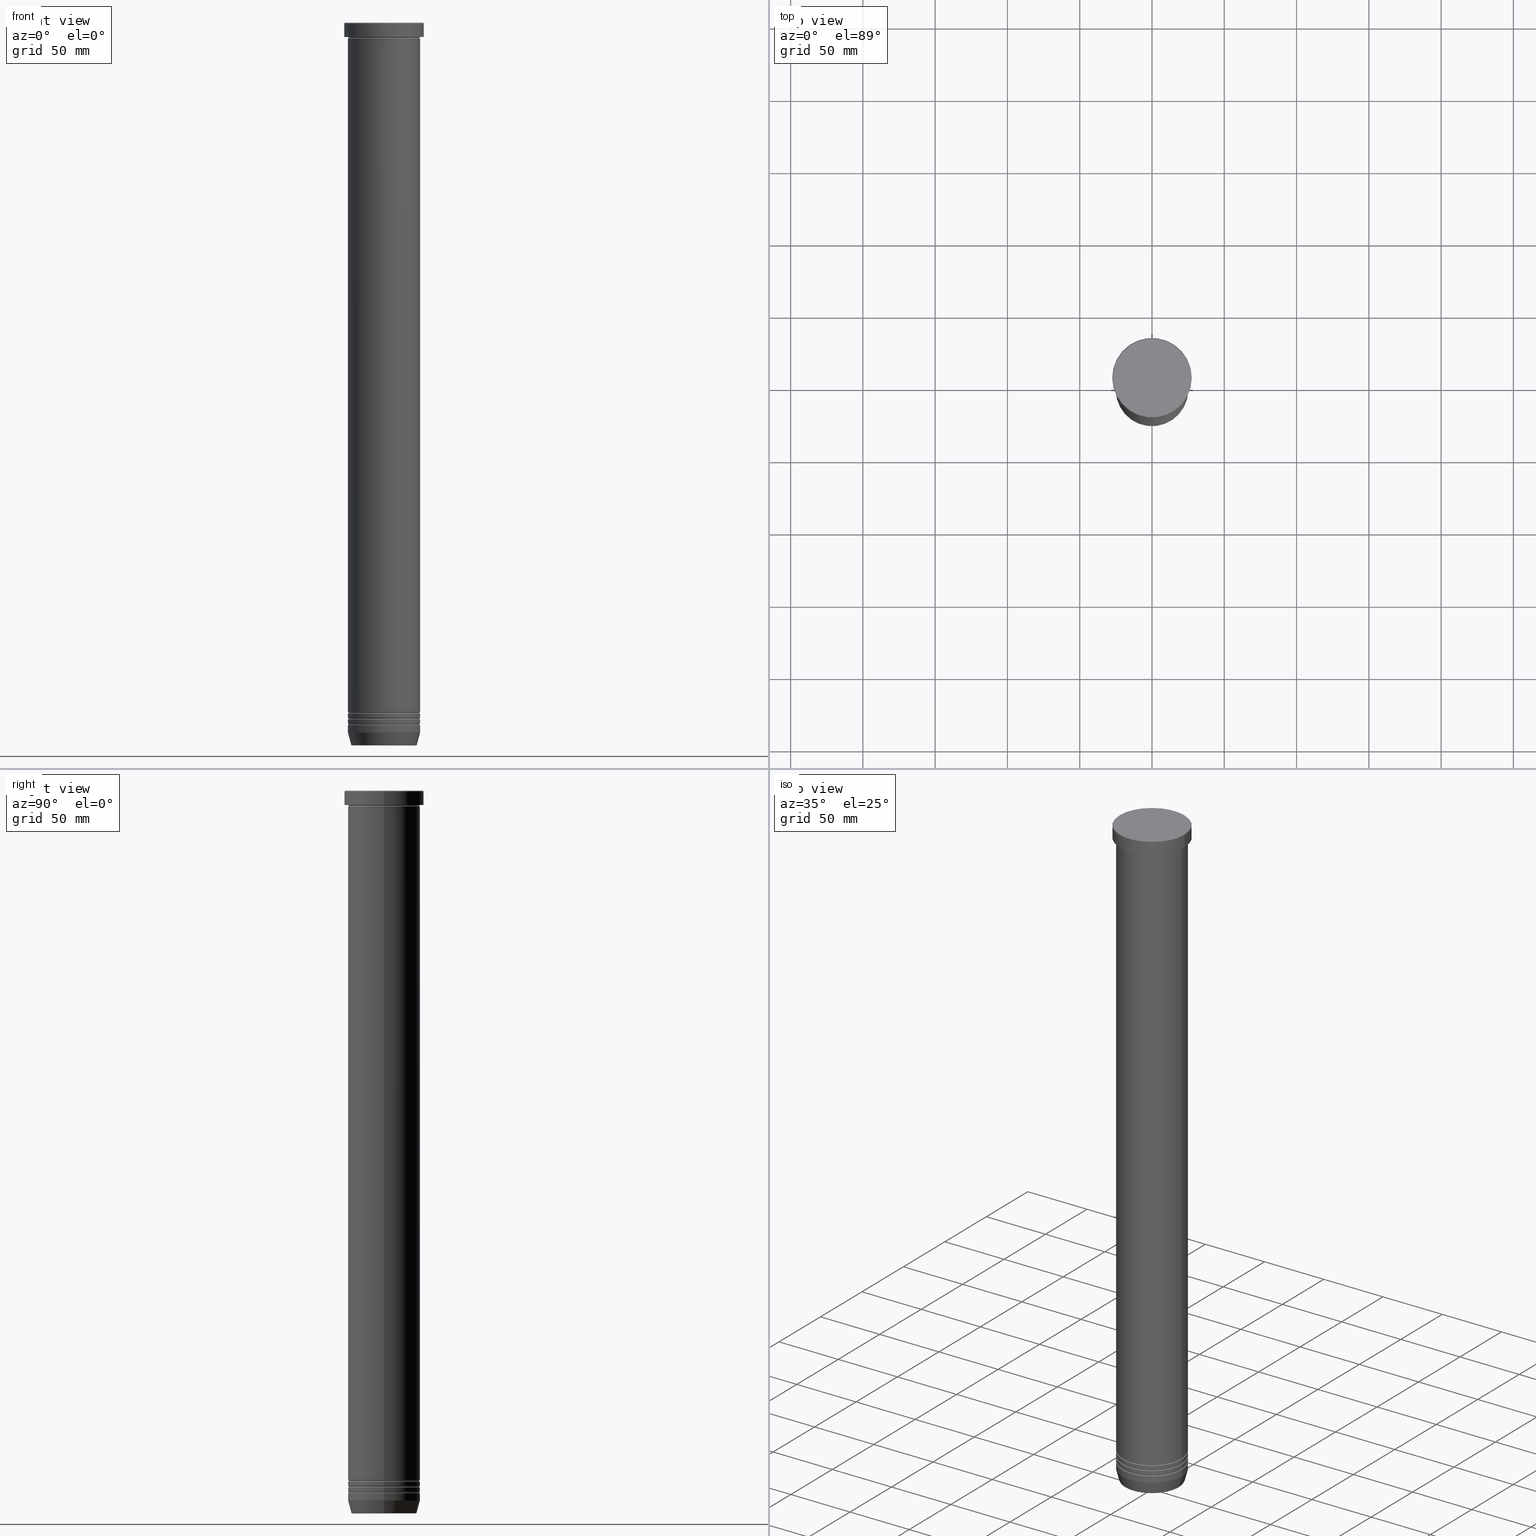
[diagram: canonical four-view strip — front | top / right | iso, engineering-drawing reading convention]
A machine part, canonical four-view strip (front | top / right | iso — engineering-drawing reading convention). The complete STEP part file that produces these views, byte-faithful:
ISO-10303-21;
HEADER;
FILE_DESCRIPTION (( 'STEP AP203' ),
    '1' );
FILE_NAME ('e316.STEP',
    '2024-01-02T17:04:43',
    ( '' ),
    ( '' ),
    'SwSTEP 2.0',
    'SolidWorks 2019',
    '' );
FILE_SCHEMA (( 'CONFIG_CONTROL_DESIGN' ));
ENDSEC;

DATA;
#1 = DIRECTION ( 'NONE',  ( -1.000000000000000000, 0.000000000000000000, 0.000000000000000000 ) ) ;
#2 = ADVANCED_FACE ( 'NONE', ( #109 ), #459, .F. ) ;
#3 = ORIENTED_EDGE ( 'NONE', *, *, #527, .F. ) ;
#4 = CYLINDRICAL_SURFACE ( 'NONE', #698, 24.99999999999999645 ) ;
#5 = EDGE_LOOP ( 'NONE', ( #730, #866, #428, #349 ) ) ;
#6 = AXIS2_PLACEMENT_3D ( 'NONE', #399, #717, #1046 ) ;
#7 = CIRCLE ( 'NONE', #275, 25.00000000000000000 ) ;
#8 = DATE_AND_TIME ( #156, #752 ) ;
#9 = VECTOR ( 'NONE', #760, 1000.000000000000000 ) ;
#10 = ORIENTED_EDGE ( 'NONE', *, *, #637, .T. ) ;
#11 = DIRECTION ( 'NONE',  ( -0.000000000000000000, -0.000000000000000000, 1.000000000000000000 ) ) ;
#12 = ORIENTED_EDGE ( 'NONE', *, *, #282, .F. ) ;
#13 = DIRECTION ( 'NONE',  ( 1.000000000000000000, 0.000000000000000000, 0.000000000000000000 ) ) ;
#14 = CARTESIAN_POINT ( 'NONE',  ( -22.58845726811986765, 2.766288189107976364E-15, -500.0000000000001137 ) ) ;
#15 = DIRECTION ( 'NONE',  ( 1.000000000000000000, 0.000000000000000000, 0.000000000000000000 ) ) ;
#16 = EDGE_CURVE ( 'NONE', #341, #505, #844, .T. ) ;
#17 = ORIENTED_EDGE ( 'NONE', *, *, #210, .F. ) ;
#18 = CARTESIAN_POINT ( 'NONE',  ( -24.49999999999999289, 3.031000827889698467E-15, -477.5000000000001137 ) ) ;
#19 = CARTESIAN_POINT ( 'NONE',  ( 0.000000000000000000, 0.000000000000000000, 0.000000000000000000 ) ) ;
#20 = LINE ( 'NONE', #1009, #21 ) ;
#21 = VECTOR ( 'NONE', #190, 1000.000000000000000 ) ;
#22 = CARTESIAN_POINT ( 'NONE',  ( 24.49999999999999289, 0.000000000000000000, -481.5000000000001137 ) ) ;
#23 = DIRECTION ( 'NONE',  ( -0.000000000000000000, -0.000000000000000000, 1.000000000000000000 ) ) ;
#24 = AXIS2_PLACEMENT_3D ( 'NONE', #218, #547, #703 ) ;
#25 = EDGE_CURVE ( 'NONE', #147, #48, #214, .T. ) ;
#26 = VERTEX_POINT ( 'NONE', #590 ) ;
#27 = SECURITY_CLASSIFICATION ( '', '', #507 ) ;
#28 = DIRECTION ( 'NONE',  ( 1.000000000000000000, 0.000000000000000000, 0.000000000000000000 ) ) ;
#29 = CARTESIAN_POINT ( 'NONE',  ( 0.000000000000000000, 0.000000000000000000, -481.5000000000001137 ) ) ;
#30 = DIRECTION ( 'NONE',  ( 0.000000000000000000, -1.000000000000000000, 0.000000000000000000 ) ) ;
#31 = CYLINDRICAL_SURFACE ( 'NONE', #763, 25.00000000000000000 ) ;
#32 = CARTESIAN_POINT ( 'NONE',  ( 0.000000000000000000, 0.000000000000000000, -100.0000000000000000 ) ) ;
#33 = ORIENTED_EDGE ( 'NONE', *, *, #148, .T. ) ;
#34 = CARTESIAN_POINT ( 'NONE',  ( 0.000000000000000000, 0.000000000000000000, 0.000000000000000000 ) ) ;
#35 = EDGE_CURVE ( 'NONE', #173, #76, #272, .T. ) ;
#36 = AXIS2_PLACEMENT_3D ( 'NONE', #881, #742, #840 ) ;
#37 = PERSON_AND_ORGANIZATION ( #285, #1055 ) ;
#38 = CIRCLE ( 'NONE', #293, 25.00000000000000000 ) ;
#39 = EDGE_LOOP ( 'NONE', ( #336, #906 ) ) ;
#40 = DIRECTION ( 'NONE',  ( 1.000000000000000000, 0.000000000000000000, 0.000000000000000000 ) ) ;
#41 = AXIS2_PLACEMENT_3D ( 'NONE', #638, #400, #549 ) ;
#42 = DIRECTION ( 'NONE',  ( -1.000000000000000000, 0.000000000000000000, 0.000000000000000000 ) ) ;
#43 = APPROVAL_STATUS ( 'not_yet_approved' ) ;
#44 = EDGE_LOOP ( 'NONE', ( #499, #1058, #154, #228 ) ) ;
#45 = CARTESIAN_POINT ( 'NONE',  ( 0.000000000000000000, 0.000000000000000000, -485.5000000000001137 ) ) ;
#46 = DIRECTION ( 'NONE',  ( -0.000000000000000000, -0.000000000000000000, 1.000000000000000000 ) ) ;
#47 = EDGE_CURVE ( 'NONE', #217, #339, #543, .T. ) ;
#48 = VERTEX_POINT ( 'NONE', #1002 ) ;
#49 = DIRECTION ( 'NONE',  ( -1.000000000000000000, -1.224646799147349509E-16, 0.000000000000000000 ) ) ;
#50 = CARTESIAN_POINT ( 'NONE',  ( 0.000000000000000000, 0.000000000000000000, -481.5000000000001137 ) ) ;
#51 = DATE_AND_TIME ( #299, #111 ) ;
#52 = AXIS2_PLACEMENT_3D ( 'NONE', #837, #370, #13 ) ;
#53 = VERTEX_POINT ( 'NONE', #690 ) ;
#54 = CARTESIAN_POINT ( 'NONE',  ( 25.00000000000000000, 0.000000000000000000, -482.0000000000001137 ) ) ;
#55 = AXIS2_PLACEMENT_3D ( 'NONE', #793, #402, #805 ) ;
#56 = EDGE_CURVE ( 'NONE', #76, #173, #610, .T. ) ;
#57 = CIRCLE ( 'NONE', #236, 24.99999999999999289 ) ;
#58 = DIRECTION ( 'NONE',  ( 0.000000000000000000, 0.000000000000000000, -1.000000000000000000 ) ) ;
#59 = CIRCLE ( 'NONE', #199, 25.00000000000000000 ) ;
#60 = DIRECTION ( 'NONE',  ( -1.000000000000000000, 0.000000000000000000, 0.000000000000000000 ) ) ;
#61 = CARTESIAN_POINT ( 'NONE',  ( 25.00000000000000000, 3.061616997868383043E-15, -10.49999999999999822 ) ) ;
#62 = ORIENTED_EDGE ( 'NONE', *, *, #369, .T. ) ;
#63 = DIRECTION ( 'NONE',  ( -0.000000000000000000, -0.000000000000000000, 1.000000000000000000 ) ) ;
#64 = DIRECTION ( 'NONE',  ( -0.000000000000000000, -0.000000000000000000, 1.000000000000000000 ) ) ;
#65 = ADVANCED_FACE ( 'NONE', ( #1011 ), #31, .T. ) ;
#66 = ORIENTED_EDGE ( 'NONE', *, *, #747, .T. ) ;
#67 = CARTESIAN_POINT ( 'NONE',  ( -25.00000000000000000, 3.061616997868383043E-15, -486.0000000000001137 ) ) ;
#68 = CALENDAR_DATE ( 2024, 2, 1 ) ;
#69 = ORIENTED_EDGE ( 'NONE', *, *, #397, .T. ) ;
#70 = CARTESIAN_POINT ( 'NONE',  ( 25.00000000000000000, 0.000000000000000000, -486.0000000000001137 ) ) ;
#71 = ORIENTED_EDGE ( 'NONE', *, *, #319, .F. ) ;
#72 = ADVANCED_FACE ( 'NONE', ( #443 ), #684, .F. ) ;
#73 = DIRECTION ( 'NONE',  ( 1.000000000000000000, 0.000000000000000000, 0.000000000000000000 ) ) ;
#74 = EDGE_LOOP ( 'NONE', ( #718, #991, #69, #574 ) ) ;
#75 = DIRECTION ( 'NONE',  ( 1.224646799147353207E-16, 1.000000000000000000, 0.000000000000000000 ) ) ;
#76 = VERTEX_POINT ( 'NONE', #914 ) ;
#77 = FACE_OUTER_BOUND ( 'NONE', #162, .T. ) ;
#78 = AXIS2_PLACEMENT_3D ( 'NONE', #720, #654, #959 ) ;
#79 = VERTEX_POINT ( 'NONE', #22 ) ;
#80 = AXIS2_PLACEMENT_3D ( 'NONE', #469, #635, #1050 ) ;
#81 = ORIENTED_EDGE ( 'NONE', *, *, #736, .F. ) ;
#82 = CARTESIAN_POINT ( 'NONE',  ( 25.00000000000000000, 0.000000000000000000, 0.000000000000000000 ) ) ;
#83 = ORIENTED_EDGE ( 'NONE', *, *, #662, .F. ) ;
#84 = DIRECTION ( 'NONE',  ( 1.000000000000000000, 0.000000000000000000, 0.000000000000000000 ) ) ;
#85 = ORIENTED_EDGE ( 'NONE', *, *, #846, .T. ) ;
#86 = FACE_OUTER_BOUND ( 'NONE', #127, .T. ) ;
#87 = VERTEX_POINT ( 'NONE', #18 ) ;
#88 = CARTESIAN_POINT ( 'NONE',  ( 0.000000000000000000, 0.000000000000000000, -500.0000000000001137 ) ) ;
#89 = VERTEX_POINT ( 'NONE', #366 ) ;
#90 = LINE ( 'NONE', #177, #1035 ) ;
#91 = ADVANCED_FACE ( 'NONE', ( #831 ), #178, .T. ) ;
#92 = TOROIDAL_SURFACE ( 'NONE', #628, 25.00000000000000000, 0.5000000000000000000 ) ;
#93 = EDGE_LOOP ( 'NONE', ( #17, #409, #386, #359 ) ) ;
#94 = AXIS2_PLACEMENT_3D ( 'NONE', #1025, #861, #284 ) ;
#95 = AXIS2_PLACEMENT_3D ( 'NONE', #32, #683, #104 ) ;
#96 = DIRECTION ( 'NONE',  ( -1.000000000000000000, 0.000000000000000000, -0.000000000000000000 ) ) ;
#97 = ORIENTED_EDGE ( 'NONE', *, *, #16, .T. ) ;
#98 = DIRECTION ( 'NONE',  ( 1.000000000000000000, 0.000000000000000000, 0.000000000000000000 ) ) ;
#99 = VERTEX_POINT ( 'NONE', #513 ) ;
#100 = CARTESIAN_POINT ( 'NONE',  ( 0.000000000000000000, 0.000000000000000000, -478.0000000000001137 ) ) ;
#101 = DIRECTION ( 'NONE',  ( 0.000000000000000000, 0.000000000000000000, -1.000000000000000000 ) ) ;
#102 = ADVANCED_FACE ( 'NONE', ( #191 ), #843, .T. ) ;
#103 = DIRECTION ( 'NONE',  ( -0.000000000000000000, -0.000000000000000000, 1.000000000000000000 ) ) ;
#104 = DIRECTION ( 'NONE',  ( 1.000000000000000000, 0.000000000000000000, 0.000000000000000000 ) ) ;
#105 = CARTESIAN_POINT ( 'NONE',  ( -25.00000000000000355, 3.061616997868383437E-15, -100.0000000000000000 ) ) ;
#106 = AXIS2_PLACEMENT_3D ( 'NONE', #213, #132, #394 ) ;
#107 = CIRCLE ( 'NONE', #328, 25.00000000000000000 ) ;
#108 = CIRCLE ( 'NONE', #921, 24.49999999999999289 ) ;
#109 = FACE_OUTER_BOUND ( 'NONE', #1049, .T. ) ;
#110 = FACE_OUTER_BOUND ( 'NONE', #508, .T. ) ;
#111 = LOCAL_TIME ( 18, 4, 43.00000000000000000, #1023 ) ;
#112 = EDGE_LOOP ( 'NONE', ( #798, #279, #346, #1033 ) ) ;
#113 = CIRCLE ( 'NONE', #922, 26.99999999999997868 ) ;
#114 = FACE_OUTER_BOUND ( 'NONE', #259, .T. ) ;
#115 = ADVANCED_FACE ( 'NONE', ( #770 ), #514, .F. ) ;
#116 = CARTESIAN_POINT ( 'NONE',  ( 0.000000000000000000, 0.000000000000000000, 0.000000000000000000 ) ) ;
#117 = CYLINDRICAL_SURFACE ( 'NONE', #796, 25.00000000000000000 ) ;
#118 = DIRECTION ( 'NONE',  ( -1.000000000000000000, 0.000000000000000000, 0.000000000000000000 ) ) ;
#119 = ADVANCED_FACE ( 'NONE', ( #434, #615 ), #139, .T. ) ;
#120 = EDGE_CURVE ( 'NONE', #339, #904, #430, .T. ) ;
#121 = DIRECTION ( 'NONE',  ( 0.000000000000000000, 0.000000000000000000, -1.000000000000000000 ) ) ;
#122 = CARTESIAN_POINT ( 'NONE',  ( 0.000000000000000000, 0.000000000000000000, 0.000000000000000000 ) ) ;
#123 = VERTEX_POINT ( 'NONE', #378 ) ;
#124 = DIRECTION ( 'NONE',  ( 1.000000000000000000, 0.000000000000000000, 0.000000000000000000 ) ) ;
#125 = AXIS2_PLACEMENT_3D ( 'NONE', #308, #121, #136 ) ;
#126 = DIRECTION ( 'NONE',  ( 0.000000000000000000, 0.000000000000000000, -1.000000000000000000 ) ) ;
#127 = EDGE_LOOP ( 'NONE', ( #184, #1024, #1057, #1061 ) ) ;
#128 = CARTESIAN_POINT ( 'NONE',  ( 0.000000000000000000, 0.000000000000000000, -477.5000000000001137 ) ) ;
#129 = CIRCLE ( 'NONE', #562, 24.49999999999999289 ) ;
#130 = ADVANCED_FACE ( 'NONE', ( #456 ), #393, .F. ) ;
#131 = VECTOR ( 'NONE', #771, 1000.000000000000227 ) ;
#132 = DIRECTION ( 'NONE',  ( -0.000000000000000000, -0.000000000000000000, 1.000000000000000000 ) ) ;
#133 = ORIENTED_EDGE ( 'NONE', *, *, #792, .F. ) ;
#134 = DIRECTION ( 'NONE',  ( -1.000000000000000000, 0.000000000000000000, 0.000000000000000000 ) ) ;
#135 = CC_DESIGN_PERSON_AND_ORGANIZATION_ASSIGNMENT ( #37, #379, ( #773 ) ) ;
#136 = DIRECTION ( 'NONE',  ( -1.000000000000000000, 0.000000000000000000, -0.000000000000000000 ) ) ;
#137 = ADVANCED_FACE ( 'NONE', ( #475 ), #92, .F. ) ;
#138 = LINE ( 'NONE', #716, #478 ) ;
#139 = PLANE ( 'NONE',  #125 ) ;
#140 = DIRECTION ( 'NONE',  ( 1.000000000000000000, 0.000000000000000000, 0.000000000000000000 ) ) ;
#141 = DIRECTION ( 'NONE',  ( 0.000000000000000000, 0.000000000000000000, -1.000000000000000000 ) ) ;
#142 = CIRCLE ( 'NONE', #1017, 0.5000000000000004441 ) ;
#143 = AXIS2_PLACEMENT_3D ( 'NONE', #948, #621, #391 ) ;
#144 = APPROVAL_PERSON_ORGANIZATION ( #504, #357, #263 ) ;
#145 = DIRECTION ( 'NONE',  ( -0.000000000000000000, -0.000000000000000000, 1.000000000000000000 ) ) ;
#146 = EDGE_CURVE ( 'NONE', #740, #26, #159, .T. ) ;
#147 = VERTEX_POINT ( 'NONE', #945 ) ;
#148 = EDGE_CURVE ( 'NONE', #688, #99, #984, .T. ) ;
#149 = VERTEX_POINT ( 'NONE', #67 ) ;
#150 = CARTESIAN_POINT ( 'NONE',  ( 0.000000000000000000, 0.000000000000000000, -500.0000000000001137 ) ) ;
#151 = EDGE_CURVE ( 'NONE', #1018, #264, #292, .T. ) ;
#152 = ORIENTED_EDGE ( 'NONE', *, *, #863, .T. ) ;
#153 = ORIENTED_EDGE ( 'NONE', *, *, #568, .F. ) ;
#154 = ORIENTED_EDGE ( 'NONE', *, *, #148, .F. ) ;
#155 = DIRECTION ( 'NONE',  ( 0.000000000000000000, -0.000000000000000000, 1.000000000000000000 ) ) ;
#156 = CALENDAR_DATE ( 2024, 2, 1 ) ;
#157 = ORIENTED_EDGE ( 'NONE', *, *, #781, .F. ) ;
#158 = VERTEX_POINT ( 'NONE', #417 ) ;
#159 = CIRCLE ( 'NONE', #307, 27.50000000000000000 ) ;
#160 = DESIGN_CONTEXT ( 'detailed design', #286, 'design' ) ;
#161 = AXIS2_PLACEMENT_3D ( 'NONE', #452, #30, #612 ) ;
#162 = EDGE_LOOP ( 'NONE', ( #490, #646, #350, #205 ) ) ;
#163 = LOCAL_TIME ( 18, 4, 43.00000000000000000, #886 ) ;
#164 = FACE_OUTER_BOUND ( 'NONE', #93, .T. ) ;
#165 = PERSON_AND_ORGANIZATION ( #285, #1055 ) ;
#166 = ORIENTED_EDGE ( 'NONE', *, *, #527, .T. ) ;
#167 = APPLICATION_CONTEXT ( 'configuration controlled 3d designs of mechanical parts and assemblies' ) ;
#168 = ORIENTED_EDGE ( 'NONE', *, *, #369, .F. ) ;
#169 = DATE_TIME_ROLE ( 'classification_date' ) ;
#170 = EDGE_CURVE ( 'NONE', #505, #341, #710, .T. ) ;
#171 = LINE ( 'NONE', #82, #348 ) ;
#172 = ORIENTED_EDGE ( 'NONE', *, *, #47, .F. ) ;
#173 = VERTEX_POINT ( 'NONE', #979 ) ;
#174 = DIRECTION ( 'NONE',  ( 1.000000000000000000, 0.000000000000000000, 0.000000000000000000 ) ) ;
#175 = CARTESIAN_POINT ( 'NONE',  ( -25.00000000000000000, 3.061616997868383043E-15, 0.000000000000000000 ) ) ;
#176 = EDGE_LOOP ( 'NONE', ( #172, #995, #193, #625 ) ) ;
#177 = CARTESIAN_POINT ( 'NONE',  ( 25.00000000000000000, 0.000000000000000000, 0.000000000000000000 ) ) ;
#178 = CONICAL_SURFACE ( 'NONE', #898, 26.99999999999997868, 0.7853981633974552734 ) ;
#179 = ORIENTED_EDGE ( 'NONE', *, *, #598, .F. ) ;
#180 = AXIS2_PLACEMENT_3D ( 'NONE', #230, #876, #741 ) ;
#181 = AXIS2_PLACEMENT_3D ( 'NONE', #606, #999, #523 ) ;
#182 = TOROIDAL_SURFACE ( 'NONE', #880, 24.99999999999999289, 0.5000000000000000000 ) ;
#183 = ADVANCED_FACE ( 'NONE', ( #410 ), #530, .F. ) ;
#184 = ORIENTED_EDGE ( 'NONE', *, *, #649, .F. ) ;
#185 = DIRECTION ( 'NONE',  ( 1.000000000000000000, 0.000000000000000000, 0.000000000000000000 ) ) ;
#186 = DIRECTION ( 'NONE',  ( 1.000000000000000000, 0.000000000000000000, 0.000000000000000000 ) ) ;
#187 = EDGE_CURVE ( 'NONE', #585, #1018, #195, .T. ) ;
#188 = CARTESIAN_POINT ( 'NONE',  ( 0.000000000000000000, 0.000000000000000000, -478.0000000000001137 ) ) ;
#189 = FACE_OUTER_BOUND ( 'NONE', #592, .T. ) ;
#190 = DIRECTION ( 'NONE',  ( 0.7071067811865524577, 8.659560562354994488E-17, -0.7071067811865426878 ) ) ;
#191 = FACE_OUTER_BOUND ( 'NONE', #312, .T. ) ;
#192 = DIRECTION ( 'NONE',  ( -0.000000000000000000, -0.000000000000000000, 1.000000000000000000 ) ) ;
#193 = ORIENTED_EDGE ( 'NONE', *, *, #1047, .F. ) ;
#194 = EDGE_CURVE ( 'NONE', #53, #89, #695, .T. ) ;
#195 = CIRCLE ( 'NONE', #877, 22.20479377413039046 ) ;
#196 = AXIS2_PLACEMENT_3D ( 'NONE', #551, #212, #645 ) ;
#197 = ORIENTED_EDGE ( 'NONE', *, *, #525, .F. ) ;
#198 = LINE ( 'NONE', #440, #9 ) ;
#199 = AXIS2_PLACEMENT_3D ( 'NONE', #774, #1016, #277 ) ;
#200 = CARTESIAN_POINT ( 'NONE',  ( -24.49999999999999289, 3.031000827889698467E-15, -481.5000000000001137 ) ) ;
#201 = LINE ( 'NONE', #700, #461 ) ;
#202 = ADVANCED_FACE ( 'NONE', ( #423 ), #375, .F. ) ;
#203 = CARTESIAN_POINT ( 'NONE',  ( -27.50000000000000000, 3.367778697655221307E-15, -9.999999999999998224 ) ) ;
#204 = ADVANCED_FACE ( 'NONE', ( #250 ), #273, .F. ) ;
#205 = ORIENTED_EDGE ( 'NONE', *, *, #146, .T. ) ;
#206 = CARTESIAN_POINT ( 'NONE',  ( 0.000000000000000000, 0.000000000000000000, -477.0000000000001137 ) ) ;
#207 = CARTESIAN_POINT ( 'NONE',  ( 0.000000000000000000, 0.000000000000000000, -499.6294095225513843 ) ) ;
#208 = CARTESIAN_POINT ( 'NONE',  ( 24.99999999999999289, 0.000000000000000000, -485.5000000000001137 ) ) ;
#209 = PERSON_AND_ORGANIZATION ( #285, #1055 ) ;
#210 = EDGE_CURVE ( 'NONE', #521, #941, #647, .T. ) ;
#211 = ORIENTED_EDGE ( 'NONE', *, *, #675, .T. ) ;
#212 = DIRECTION ( 'NONE',  ( -0.000000000000000000, -0.000000000000000000, 1.000000000000000000 ) ) ;
#213 = CARTESIAN_POINT ( 'NONE',  ( 0.000000000000000000, 0.000000000000000000, -482.0000000000001137 ) ) ;
#214 = CIRCLE ( 'NONE', #52, 25.00000000000000000 ) ;
#215 = DIRECTION ( 'NONE',  ( 1.000000000000000000, 0.000000000000000000, 0.000000000000000000 ) ) ;
#216 = AXIS2_PLACEMENT_3D ( 'NONE', #526, #767, #28 ) ;
#217 = VERTEX_POINT ( 'NONE', #483 ) ;
#218 = CARTESIAN_POINT ( 'NONE',  ( 0.000000000000000000, 0.000000000000000000, -486.0000000000001137 ) ) ;
#219 = AXIS2_PLACEMENT_3D ( 'NONE', #1045, #305, #867 ) ;
#220 = CIRCLE ( 'NONE', #415, 0.5000000000000004441 ) ;
#221 = CARTESIAN_POINT ( 'NONE',  ( 0.000000000000000000, 0.000000000000000000, -477.5000000000001137 ) ) ;
#222 = ADVANCED_FACE ( 'NONE', ( #164 ), #325, .F. ) ;
#223 = CARTESIAN_POINT ( 'NONE',  ( 0.000000000000000000, 0.000000000000000000, -0.5000000000000143219 ) ) ;
#224 = COORDINATED_UNIVERSAL_TIME_OFFSET ( 1, 0, .AHEAD. ) ;
#225 = DIRECTION ( 'NONE',  ( 1.224646799147353207E-16, 1.000000000000000000, 0.000000000000000000 ) ) ;
#226 = CYLINDRICAL_SURFACE ( 'NONE', #765, 27.50000000000000000 ) ;
#227 = APPROVAL_ROLE ( '' ) ;
#228 = ORIENTED_EDGE ( 'NONE', *, *, #403, .F. ) ;
#229 = DIRECTION ( 'NONE',  ( -0.000000000000000000, -0.000000000000000000, 1.000000000000000000 ) ) ;
#230 = CARTESIAN_POINT ( 'NONE',  ( 0.000000000000000000, 0.000000000000000000, 0.000000000000000000 ) ) ;
#231 = FACE_OUTER_BOUND ( 'NONE', #332, .T. ) ;
#232 = AXIS2_PLACEMENT_3D ( 'NONE', #892, #821, #186 ) ;
#233 = EDGE_CURVE ( 'NONE', #858, #264, #986, .T. ) ;
#234 = EDGE_LOOP ( 'NONE', ( #431, #672, #808, #12 ) ) ;
#235 = CIRCLE ( 'NONE', #544, 22.68775668727490924 ) ;
#236 = AXIS2_PLACEMENT_3D ( 'NONE', #750, #832, #421 ) ;
#237 = CARTESIAN_POINT ( 'NONE',  ( -24.99999999999999289, 0.000000000000000000, -477.5000000000001137 ) ) ;
#238 = CC_DESIGN_PERSON_AND_ORGANIZATION_ASSIGNMENT ( #165, #969, ( #614 ) ) ;
#239 = CARTESIAN_POINT ( 'NONE',  ( 0.000000000000000000, 5.510910596163090502E-14, -500.0000000000001137 ) ) ;
#240 = ORIENTED_EDGE ( 'NONE', *, *, #822, .F. ) ;
#241 = DIRECTION ( 'NONE',  ( -0.000000000000000000, -0.000000000000000000, 1.000000000000000000 ) ) ;
#242 = ORIENTED_EDGE ( 'NONE', *, *, #800, .F. ) ;
#243 = LINE ( 'NONE', #567, #376 ) ;
#244 = EDGE_LOOP ( 'NONE', ( #663, #980, #249, #723 ) ) ;
#245 = PERSON_AND_ORGANIZATION_ROLE ( 'classification_officer' ) ;
#246 = ORIENTED_EDGE ( 'NONE', *, *, #353, .F. ) ;
#247 = CARTESIAN_POINT ( 'NONE',  ( 0.000000000000000000, 0.000000000000000000, -491.0000000000000568 ) ) ;
#248 = FACE_OUTER_BOUND ( 'NONE', #658, .T. ) ;
#249 = ORIENTED_EDGE ( 'NONE', *, *, #233, .F. ) ;
#250 = FACE_OUTER_BOUND ( 'NONE', #570, .T. ) ;
#251 = VERTEX_POINT ( 'NONE', #727 ) ;
#252 = DIRECTION ( 'NONE',  ( 1.000000000000000000, 0.000000000000000000, 0.000000000000000000 ) ) ;
#253 = AXIS2_PLACEMENT_3D ( 'NONE', #722, #560, #656 ) ;
#254 = ORIENTED_EDGE ( 'NONE', *, *, #146, .F. ) ;
#255 = CIRCLE ( 'NONE', #94, 0.5000000000000004441 ) ;
#256 = AXIS2_PLACEMENT_3D ( 'NONE', #640, #225, #958 ) ;
#257 = VECTOR ( 'NONE', #444, 1000.000000000000000 ) ;
#258 = ADVANCED_FACE ( 'NONE', ( #648 ), #488, .F. ) ;
#259 = EDGE_LOOP ( 'NONE', ( #97, #870, #666, #157 ) ) ;
#260 = CARTESIAN_POINT ( 'NONE',  ( 27.50000000000000000, 0.000000000000000000, -0.5000000000000143219 ) ) ;
#261 = EDGE_LOOP ( 'NONE', ( #496, #211, #541, #485 ) ) ;
#262 = EDGE_LOOP ( 'NONE', ( #938, #993, #744, #735 ) ) ;
#263 = APPROVAL_ROLE ( '' ) ;
#264 = VERTEX_POINT ( 'NONE', #814 ) ;
#265 = ORIENTED_EDGE ( 'NONE', *, *, #916, .T. ) ;
#266 = CARTESIAN_POINT ( 'NONE',  ( -24.99999999999999645, 3.061616997868382648E-15, -481.0000000000001137 ) ) ;
#267 = ORIENTED_EDGE ( 'NONE', *, *, #822, .T. ) ;
#268 = DIRECTION ( 'NONE',  ( 0.000000000000000000, 0.000000000000000000, -1.000000000000000000 ) ) ;
#269 = CYLINDRICAL_SURFACE ( 'NONE', #600, 25.00000000000000000 ) ;
#270 = ADVANCED_FACE ( 'NONE', ( #929 ), #603, .T. ) ;
#271 = DIRECTION ( 'NONE',  ( -0.000000000000000000, -0.000000000000000000, 1.000000000000000000 ) ) ;
#272 = CIRCLE ( 'NONE', #813, 25.00000000000000000 ) ;
#273 = PLANE ( 'NONE',  #36 ) ;
#274 = AXIS2_PLACEMENT_3D ( 'NONE', #473, #58, #704 ) ;
#275 = AXIS2_PLACEMENT_3D ( 'NONE', #247, #340, #252 ) ;
#276 = CIRCLE ( 'NONE', #849, 27.50000000000000000 ) ;
#277 = DIRECTION ( 'NONE',  ( 1.000000000000000000, 0.000000000000000000, 0.000000000000000000 ) ) ;
#278 = VERTEX_POINT ( 'NONE', #382 ) ;
#279 = ORIENTED_EDGE ( 'NONE', *, *, #170, .T. ) ;
#280 = EDGE_LOOP ( 'NONE', ( #947, #511, #911, #133 ) ) ;
#281 = FACE_OUTER_BOUND ( 'NONE', #487, .T. ) ;
#282 = EDGE_CURVE ( 'NONE', #99, #556, #711, .T. ) ;
#283 = ORIENTED_EDGE ( 'NONE', *, *, #233, .T. ) ;
#284 = DIRECTION ( 'NONE',  ( 0.000000000000000000, 0.000000000000000000, -1.000000000000000000 ) ) ;
#285 = PERSON ( 'NEUR�EN�', 'NEUR�EN�', 'NEUR�EN�', ('NEUR�EN�'), ('NEUR�EN�'), ('NEUR�EN�') ) ;
#286 = APPLICATION_CONTEXT ( 'configuration controlled 3d designs of mechanical parts and assemblies' ) ;
#287 = DIRECTION ( 'NONE',  ( 0.000000000000000000, 0.000000000000000000, -1.000000000000000000 ) ) ;
#288 = CARTESIAN_POINT ( 'NONE',  ( 24.49999999999999289, 0.000000000000000000, -477.5000000000001137 ) ) ;
#289 = LINE ( 'NONE', #617, #728 ) ;
#290 = APPROVAL ( #778, 'NEUR�EN�' ) ;
#291 = DIRECTION ( 'NONE',  ( 0.000000000000000000, 0.000000000000000000, -1.000000000000000000 ) ) ;
#292 = CIRCLE ( 'NONE', #559, 0.5000000000000004441 ) ;
#293 = AXIS2_PLACEMENT_3D ( 'NONE', #315, #973, #955 ) ;
#294 = CIRCLE ( 'NONE', #95, 25.00000000000000000 ) ;
#295 = DIRECTION ( 'NONE',  ( 0.000000000000000000, 0.000000000000000000, -1.000000000000000000 ) ) ;
#296 = CARTESIAN_POINT ( 'NONE',  ( 22.68775668727490924, 0.000000000000000000, -499.6294095225513843 ) ) ;
#297 = CARTESIAN_POINT ( 'NONE',  ( 0.000000000000000000, 0.000000000000000000, 0.000000000000000000 ) ) ;
#298 = EDGE_CURVE ( 'NONE', #858, #89, #201, .T. ) ;
#299 = CALENDAR_DATE ( 2024, 2, 1 ) ;
#300 = DIRECTION ( 'NONE',  ( -0.000000000000000000, -0.000000000000000000, 1.000000000000000000 ) ) ;
#301 = CARTESIAN_POINT ( 'NONE',  ( -25.00000000000000000, 0.000000000000000000, -9.999999999999998224 ) ) ;
#302 = DIRECTION ( 'NONE',  ( 0.000000000000000000, 0.000000000000000000, -1.000000000000000000 ) ) ;
#303 = DIRECTION ( 'NONE',  ( -0.000000000000000000, -0.000000000000000000, 1.000000000000000000 ) ) ;
#304 = ORIENTED_EDGE ( 'NONE', *, *, #481, .T. ) ;
#305 = DIRECTION ( 'NONE',  ( -0.000000000000000000, -0.000000000000000000, 1.000000000000000000 ) ) ;
#306 = EDGE_CURVE ( 'NONE', #149, #413, #516, .T. ) ;
#307 = AXIS2_PLACEMENT_3D ( 'NONE', #223, #302, #623 ) ;
#308 = CARTESIAN_POINT ( 'NONE',  ( 0.000000000000000000, 27.50000000000000000, -9.999999999999998224 ) ) ;
#309 = AXIS2_PLACEMENT_3D ( 'NONE', #605, #759, #762 ) ;
#310 = CARTESIAN_POINT ( 'NONE',  ( 0.000000000000000000, 0.000000000000000000, 0.000000000000000000 ) ) ;
#311 = AXIS2_PLACEMENT_3D ( 'NONE', #392, #46, #890 ) ;
#312 = EDGE_LOOP ( 'NONE', ( #404, #358 ) ) ;
#313 = AXIS2_PLACEMENT_3D ( 'NONE', #401, #229, #724 ) ;
#314 = CONICAL_SURFACE ( 'NONE', #398, 26.99999999999997868, 0.7853981633974552734 ) ;
#315 = CARTESIAN_POINT ( 'NONE',  ( 0.000000000000000000, 0.000000000000000000, -100.0000000000000000 ) ) ;
#316 = ORIENTED_EDGE ( 'NONE', *, *, #403, .T. ) ;
#317 = CYLINDRICAL_SURFACE ( 'NONE', #313, 24.99999999999999645 ) ;
#318 = FACE_OUTER_BOUND ( 'NONE', #44, .T. ) ;
#319 = EDGE_CURVE ( 'NONE', #341, #79, #255, .T. ) ;
#320 = DIRECTION ( 'NONE',  ( 1.000000000000000000, 0.000000000000000000, 0.000000000000000000 ) ) ;
#321 = PERSON_AND_ORGANIZATION ( #285, #1055 ) ;
#322 = EDGE_LOOP ( 'NONE', ( #335, #676, #3, #197 ) ) ;
#323 = CYLINDRICAL_SURFACE ( 'NONE', #180, 24.99999999999999645 ) ;
#324 = DIRECTION ( 'NONE',  ( -0.000000000000000000, -0.000000000000000000, 1.000000000000000000 ) ) ;
#325 = TOROIDAL_SURFACE ( 'NONE', #933, 25.00000000000000000, 0.5000000000000000000 ) ;
#326 = ORIENTED_EDGE ( 'NONE', *, *, #460, .F. ) ;
#327 = DIRECTION ( 'NONE',  ( 0.000000000000000000, 0.000000000000000000, -1.000000000000000000 ) ) ;
#328 = AXIS2_PLACEMENT_3D ( 'NONE', #356, #976, #581 ) ;
#329 = VERTEX_POINT ( 'NONE', #301 ) ;
#330 = CONICAL_SURFACE ( 'NONE', #579, 22.58845726811986765, 0.2617993877991509066 ) ;
#331 = AXIS2_PLACEMENT_3D ( 'NONE', #845, #920, #764 ) ;
#332 = EDGE_LOOP ( 'NONE', ( #492, #589, #924, #71 ) ) ;
#333 = DIRECTION ( 'NONE',  ( -1.000000000000000000, 1.224646799147349509E-16, 0.000000000000000000 ) ) ;
#334 = ADVANCED_FACE ( 'NONE', ( #114 ), #926, .T. ) ;
#335 = ORIENTED_EDGE ( 'NONE', *, *, #25, .T. ) ;
#336 = ORIENTED_EDGE ( 'NONE', *, *, #598, .T. ) ;
#337 = PERSON_AND_ORGANIZATION_ROLE ( 'design_supplier' ) ;
#338 = EDGE_CURVE ( 'NONE', #585, #858, #395, .T. ) ;
#339 = VERTEX_POINT ( 'NONE', #622 ) ;
#340 = DIRECTION ( 'NONE',  ( -0.000000000000000000, -0.000000000000000000, 1.000000000000000000 ) ) ;
#341 = VERTEX_POINT ( 'NONE', #936 ) ;
#342 = CARTESIAN_POINT ( 'NONE',  ( 25.00000000000000000, 0.000000000000000000, -10.49999999999999822 ) ) ;
#343 = EDGE_CURVE ( 'NONE', #264, #858, #235, .T. ) ;
#344 = DIRECTION ( 'NONE',  ( 0.000000000000000000, 0.000000000000000000, -1.000000000000000000 ) ) ;
#345 = AXIS2_PLACEMENT_3D ( 'NONE', #208, #463, #783 ) ;
#346 = ORIENTED_EDGE ( 'NONE', *, *, #781, .T. ) ;
#347 = CIRCLE ( 'NONE', #902, 24.49999999999999289 ) ;
#348 = VECTOR ( 'NONE', #11, 1000.000000000000000 ) ;
#349 = ORIENTED_EDGE ( 'NONE', *, *, #383, .F. ) ;
#350 = ORIENTED_EDGE ( 'NONE', *, *, #419, .T. ) ;
#351 = CARTESIAN_POINT ( 'NONE',  ( 24.99999999999999289, 3.061616997868382254E-15, -477.5000000000001137 ) ) ;
#352 = DIRECTION ( 'NONE',  ( 0.000000000000000000, -1.000000000000000000, 0.000000000000000000 ) ) ;
#353 = EDGE_CURVE ( 'NONE', #251, #740, #20, .T. ) ;
#354 = CARTESIAN_POINT ( 'NONE',  ( 0.000000000000000000, 0.000000000000000000, -10.49999999999999822 ) ) ;
#355 = DIRECTION ( 'NONE',  ( -0.000000000000000000, -0.000000000000000000, 1.000000000000000000 ) ) ;
#356 = CARTESIAN_POINT ( 'NONE',  ( 0.000000000000000000, 0.000000000000000000, -11.00000000000000000 ) ) ;
#357 = APPROVAL ( #974, 'NEUR�EN�' ) ;
#358 = ORIENTED_EDGE ( 'NONE', *, *, #604, .F. ) ;
#359 = ORIENTED_EDGE ( 'NONE', *, *, #493, .F. ) ;
#360 = DIRECTION ( 'NONE',  ( -0.000000000000000000, -0.000000000000000000, 1.000000000000000000 ) ) ;
#361 = AXIS2_PLACEMENT_3D ( 'NONE', #689, #533, #528 ) ;
#362 = ORIENTED_EDGE ( 'NONE', *, *, #967, .F. ) ;
#363 = AXIS2_PLACEMENT_3D ( 'NONE', #1048, #968, #503 ) ;
#364 = AXIS2_PLACEMENT_3D ( 'NONE', #731, #241, #664 ) ;
#365 = APPROVAL_PERSON_ORGANIZATION ( #643, #290, #227 ) ;
#366 = CARTESIAN_POINT ( 'NONE',  ( 25.00000000000000000, 0.000000000000000000, -491.0000000000000568 ) ) ;
#367 = DIRECTION ( 'NONE',  ( 1.000000000000000000, 0.000000000000000000, 0.000000000000000000 ) ) ;
#368 = VERTEX_POINT ( 'NONE', #105 ) ;
#369 = EDGE_CURVE ( 'NONE', #278, #904, #597, .T. ) ;
#370 = DIRECTION ( 'NONE',  ( -0.000000000000000000, -0.000000000000000000, 1.000000000000000000 ) ) ;
#371 = DIRECTION ( 'NONE',  ( 1.000000000000000000, 0.000000000000000000, 0.000000000000000000 ) ) ;
#372 = EDGE_CURVE ( 'NONE', #87, #982, #347, .T. ) ;
#373 = CYLINDRICAL_SURFACE ( 'NONE', #632, 24.99999999999999645 ) ;
#374 = CARTESIAN_POINT ( 'NONE',  ( 0.000000000000000000, 0.000000000000000000, -10.49999999999999822 ) ) ;
#375 = TOROIDAL_SURFACE ( 'NONE', #964, 24.99999999999999289, 0.5000000000000000000 ) ;
#376 = VECTOR ( 'NONE', #789, 1000.000000000000000 ) ;
#377 = AXIS2_PLACEMENT_3D ( 'NONE', #535, #853, #118 ) ;
#378 = CARTESIAN_POINT ( 'NONE',  ( 25.00000000000000000, 0.000000000000000000, -100.0000000000000000 ) ) ;
#379 = PERSON_AND_ORGANIZATION_ROLE ( 'creator' ) ;
#380 = ORIENTED_EDGE ( 'NONE', *, *, #194, .F. ) ;
#381 = CARTESIAN_POINT ( 'NONE',  ( 22.20479377413039046, 0.000000000000000000, -500.0000000000001137 ) ) ;
#382 = CARTESIAN_POINT ( 'NONE',  ( -24.49999999999999289, 3.031000827889698467E-15, -485.5000000000001137 ) ) ;
#383 = EDGE_CURVE ( 'NONE', #368, #123, #38, .T. ) ;
#384 = DIRECTION ( 'NONE',  ( -1.000000000000000000, -1.224646799147349509E-16, 0.000000000000000000 ) ) ;
#385 = ADVANCED_FACE ( 'NONE', ( #963 ), #226, .T. ) ;
#386 = ORIENTED_EDGE ( 'NONE', *, *, #943, .T. ) ;
#387 = DIRECTION ( 'NONE',  ( -0.000000000000000000, -0.000000000000000000, 1.000000000000000000 ) ) ;
#388 = DIRECTION ( 'NONE',  ( -0.000000000000000000, -0.000000000000000000, 1.000000000000000000 ) ) ;
#389 = APPLICATION_PROTOCOL_DEFINITION ( 'international standard', 'config_control_design', 1994, #286 ) ;
#390 = ORIENTED_EDGE ( 'NONE', *, *, #604, .T. ) ;
#391 = DIRECTION ( 'NONE',  ( -1.000000000000000000, 1.224646799147349509E-16, 0.000000000000000000 ) ) ;
#392 = CARTESIAN_POINT ( 'NONE',  ( 0.000000000000000000, 0.000000000000000000, -485.0000000000001137 ) ) ;
#393 = TOROIDAL_SURFACE ( 'NONE', #1032, 24.99999999999999289, 0.5000000000000000000 ) ;
#394 = DIRECTION ( 'NONE',  ( 1.000000000000000000, 0.000000000000000000, 0.000000000000000000 ) ) ;
#395 = CIRCLE ( 'NONE', #161, 0.5000000000000004441 ) ;
#396 = CARTESIAN_POINT ( 'NONE',  ( -22.20479377413039046, 2.748875911406052816E-15, -500.0000000000001137 ) ) ;
#397 = EDGE_CURVE ( 'NONE', #76, #87, #878, .T. ) ;
#398 = AXIS2_PLACEMENT_3D ( 'NONE', #122, #529, #838 ) ;
#399 = CARTESIAN_POINT ( 'NONE',  ( 24.99999999999999289, 0.000000000000000000, -477.5000000000001137 ) ) ;
#400 = DIRECTION ( 'NONE',  ( 0.000000000000000000, 0.000000000000000000, 1.000000000000000000 ) ) ;
#401 = CARTESIAN_POINT ( 'NONE',  ( 0.000000000000000000, 0.000000000000000000, 0.000000000000000000 ) ) ;
#402 = DIRECTION ( 'NONE',  ( -0.000000000000000000, -0.000000000000000000, 1.000000000000000000 ) ) ;
#403 = EDGE_CURVE ( 'NONE', #339, #688, #552, .T. ) ;
#404 = ORIENTED_EDGE ( 'NONE', *, *, #25, .F. ) ;
#405 = DIRECTION ( 'NONE',  ( -0.000000000000000000, -0.000000000000000000, 1.000000000000000000 ) ) ;
#406 = MANIFOLD_SOLID_BREP ( 'Zaoblit5', #411 ) ;
#407 = FACE_OUTER_BOUND ( 'NONE', #806, .T. ) ;
#408 = ADVANCED_FACE ( 'NONE', ( #868 ), #576, .T. ) ;
#409 = ORIENTED_EDGE ( 'NONE', *, *, #662, .T. ) ;
#410 = FACE_OUTER_BOUND ( 'NONE', #524, .T. ) ;
#411 = CLOSED_SHELL ( 'NONE', ( #183, #930, #130, #1056, #72, #451, #708, #334, #961, #553, #900, #484, #758, #65, #769, #258, #204, #619, #685, #408, #471, #671, #522, #2, #202, #852 ) ) ;
#412 = AXIS2_PLACEMENT_3D ( 'NONE', #572, #300, #1014 ) ;
#413 = VERTEX_POINT ( 'NONE', #70 ) ;
#414 = CIRCLE ( 'NONE', #848, 0.5000000000000004441 ) ;
#415 = AXIS2_PLACEMENT_3D ( 'NONE', #960, #540, #384 ) ;
#416 = MANIFOLD_SOLID_BREP ( 'Zkosen�1', #575 ) ;
#417 = CARTESIAN_POINT ( 'NONE',  ( 25.00000000000000000, 3.061616997868383043E-15, -9.999999999999998224 ) ) ;
#418 = SHAPE_DEFINITION_REPRESENTATION ( #691, #997 ) ;
#419 = EDGE_CURVE ( 'NONE', #479, #740, #1042, .T. ) ;
#420 = ORIENTED_EDGE ( 'NONE', *, *, #977, .T. ) ;
#421 = DIRECTION ( 'NONE',  ( 1.000000000000000000, 0.000000000000000000, 0.000000000000000000 ) ) ;
#422 = VERTEX_POINT ( 'NONE', #641 ) ;
#423 = FACE_OUTER_BOUND ( 'NONE', #803, .T. ) ;
#424 = ORIENTED_EDGE ( 'NONE', *, *, #509, .F. ) ;
#425 = CARTESIAN_POINT ( 'NONE',  ( -24.99999999999999289, 3.061616997868382254E-15, -477.5000000000001137 ) ) ;
#426 = ORIENTED_EDGE ( 'NONE', *, *, #298, .F. ) ;
#427 = APPROVAL_DATE_TIME ( #8, #357 ) ;
#428 = ORIENTED_EDGE ( 'NONE', *, *, #509, .T. ) ;
#429 = FACE_OUTER_BOUND ( 'NONE', #74, .T. ) ;
#430 = CIRCLE ( 'NONE', #345, 0.5000000000000004441 ) ;
#431 = ORIENTED_EDGE ( 'NONE', *, *, #940, .T. ) ;
#432 = AXIS2_PLACEMENT_3D ( 'NONE', #912, #907, #983 ) ;
#433 = EDGE_CURVE ( 'NONE', #970, #26, #243, .T. ) ;
#434 = FACE_BOUND ( 'NONE', #918, .T. ) ;
#435 = CARTESIAN_POINT ( 'NONE',  ( -24.99999999999999289, 3.061616997868382254E-15, -485.5000000000001137 ) ) ;
#436 = CC_DESIGN_PERSON_AND_ORGANIZATION_ASSIGNMENT ( #321, #1027, ( #681 ) ) ;
#437 = EDGE_LOOP ( 'NONE', ( #1051, #989 ) ) ;
#438 = ORIENTED_EDGE ( 'NONE', *, *, #637, .F. ) ;
#439 = DIRECTION ( 'NONE',  ( -0.000000000000000000, -0.000000000000000000, 1.000000000000000000 ) ) ;
#440 = CARTESIAN_POINT ( 'NONE',  ( 25.00000000000000000, 0.000000000000000000, 0.000000000000000000 ) ) ;
#441 = ORIENTED_EDGE ( 'NONE', *, *, #353, .T. ) ;
#442 = CARTESIAN_POINT ( 'NONE',  ( -22.20479377413039046, 2.719302962121586273E-15, -499.5000000000001137 ) ) ;
#443 = FACE_OUTER_BOUND ( 'NONE', #261, .T. ) ;
#444 = DIRECTION ( 'NONE',  ( -0.7071067811865524577, 0.000000000000000000, -0.7071067811865426878 ) ) ;
#445 = AXIS2_PLACEMENT_3D ( 'NONE', #607, #841, #1015 ) ;
#446 = TOROIDAL_SURFACE ( 'NONE', #432, 24.99999999999999289, 0.5000000000000000000 ) ;
#447 = CIRCLE ( 'NONE', #274, 22.20479377413039046 ) ;
#448 = VECTOR ( 'NONE', #875, 1000.000000000000000 ) ;
#449 = DIRECTION ( 'NONE',  ( 0.000000000000000000, 0.000000000000000000, -1.000000000000000000 ) ) ;
#450 = LINE ( 'NONE', #14, #131 ) ;
#451 = ADVANCED_FACE ( 'NONE', ( #564 ), #476, .F. ) ;
#452 = CARTESIAN_POINT ( 'NONE',  ( 22.20479377413039046, 0.000000000000000000, -499.5000000000001137 ) ) ;
#453 = CARTESIAN_POINT ( 'NONE',  ( 0.000000000000000000, 25.00000000000000000, -100.0000000000000000 ) ) ;
#454 = DIRECTION ( 'NONE',  ( 1.000000000000000000, 0.000000000000000000, 0.000000000000000000 ) ) ;
#455 = ORIENTED_EDGE ( 'NONE', *, *, #343, .T. ) ;
#456 = FACE_OUTER_BOUND ( 'NONE', #234, .T. ) ;
#457 = LINE ( 'NONE', #1003, #257 ) ;
#458 = ORIENTED_EDGE ( 'NONE', *, *, #967, .T. ) ;
#459 = TOROIDAL_SURFACE ( 'NONE', #931, 24.99999999999999289, 0.5000000000000000000 ) ;
#460 = EDGE_CURVE ( 'NONE', #339, #217, #629, .T. ) ;
#461 = VECTOR ( 'NONE', #1022, 1000.000000000000227 ) ;
#462 = AXIS2_PLACEMENT_3D ( 'NONE', #374, #693, #1019 ) ;
#463 = DIRECTION ( 'NONE',  ( 0.000000000000000000, -1.000000000000000000, 0.000000000000000000 ) ) ;
#464 = CIRCLE ( 'NONE', #480, 24.49999999999999289 ) ;
#465 = DIRECTION ( 'NONE',  ( 1.000000000000000000, 0.000000000000000000, 0.000000000000000000 ) ) ;
#466 = CARTESIAN_POINT ( 'NONE',  ( 0.000000000000000000, 0.000000000000000000, -485.5000000000001137 ) ) ;
#467 = CARTESIAN_POINT ( 'NONE',  ( 0.000000000000000000, 0.000000000000000000, -10.49999999999999822 ) ) ;
#468 = DATE_AND_TIME ( #790, #818 ) ;
#469 = CARTESIAN_POINT ( 'NONE',  ( 0.000000000000000000, 0.000000000000000000, -9.999999999999998224 ) ) ;
#470 = DIRECTION ( 'NONE',  ( 0.000000000000000000, 0.000000000000000000, -1.000000000000000000 ) ) ;
#471 = ADVANCED_FACE ( 'NONE', ( #407 ), #847, .F. ) ;
#472 = DIRECTION ( 'NONE',  ( -0.000000000000000000, -0.000000000000000000, 1.000000000000000000 ) ) ;
#473 = CARTESIAN_POINT ( 'NONE',  ( 0.000000000000000000, 0.000000000000000000, -500.0000000000001137 ) ) ;
#474 = EDGE_CURVE ( 'NONE', #1018, #585, #447, .T. ) ;
#475 = FACE_OUTER_BOUND ( 'NONE', #891, .T. ) ;
#476 = TOROIDAL_SURFACE ( 'NONE', #78, 24.99999999999999289, 0.5000000000000000000 ) ;
#477 = DIRECTION ( 'NONE',  ( -1.000000000000000000, -1.224646799147349509E-16, 0.000000000000000000 ) ) ;
#478 = VECTOR ( 'NONE', #63, 1000.000000000000000 ) ;
#479 = VERTEX_POINT ( 'NONE', #1030 ) ;
#480 = AXIS2_PLACEMENT_3D ( 'NONE', #856, #126, #784 ) ;
#481 = EDGE_CURVE ( 'NONE', #978, #982, #815, .T. ) ;
#482 = DIRECTION ( 'NONE',  ( 1.000000000000000000, 0.000000000000000000, 0.000000000000000000 ) ) ;
#483 = CARTESIAN_POINT ( 'NONE',  ( -24.99999999999999289, 3.061616997868382648E-15, -485.0000000000001137 ) ) ;
#484 = ADVANCED_FACE ( 'NONE', ( #318 ), #323, .T. ) ;
#485 = ORIENTED_EDGE ( 'NONE', *, *, #747, .F. ) ;
#486 = LINE ( 'NONE', #804, #795 ) ;
#487 = EDGE_LOOP ( 'NONE', ( #267, #913, #888, #706 ) ) ;
#488 = PLANE ( 'NONE',  #1001 ) ;
#489 = PERSON_AND_ORGANIZATION ( #285, #1055 ) ;
#490 = ORIENTED_EDGE ( 'NONE', *, *, #433, .F. ) ;
#491 = CARTESIAN_POINT ( 'NONE',  ( -25.00000000000000000, 0.000000000000000000, -10.49999999999999822 ) ) ;
#492 = ORIENTED_EDGE ( 'NONE', *, *, #170, .F. ) ;
#493 = EDGE_CURVE ( 'NONE', #941, #422, #142, .T. ) ;
#494 = DIRECTION ( 'NONE',  ( 1.000000000000000000, 0.000000000000000000, 0.000000000000000000 ) ) ;
#495 = CALENDAR_DATE ( 2024, 2, 1 ) ;
#496 = ORIENTED_EDGE ( 'NONE', *, *, #306, .T. ) ;
#497 = FACE_OUTER_BOUND ( 'NONE', #653, .T. ) ;
#498 = AXIS2_PLACEMENT_3D ( 'NONE', #297, #944, #618 ) ;
#499 = ORIENTED_EDGE ( 'NONE', *, *, #460, .T. ) ;
#500 = CIRCLE ( 'NONE', #256, 0.5000000000000004441 ) ;
#501 = CARTESIAN_POINT ( 'NONE',  ( 0.000000000000000000, 0.000000000000000000, -0.5000000000000143219 ) ) ;
#502 = CC_DESIGN_APPROVAL ( #802, ( #614 ) ) ;
#503 = DIRECTION ( 'NONE',  ( -1.000000000000000000, 0.000000000000000000, 0.000000000000000000 ) ) ;
#504 = PERSON_AND_ORGANIZATION ( #285, #1055 ) ;
#505 = VERTEX_POINT ( 'NONE', #266 ) ;
#506 = DIRECTION ( 'NONE',  ( -0.000000000000000000, -0.000000000000000000, 1.000000000000000000 ) ) ;
#507 = SECURITY_CLASSIFICATION_LEVEL ( 'unclassified' ) ;
#508 = EDGE_LOOP ( 'NONE', ( #894, #702, #438, #746 ) ) ;
#509 = EDGE_CURVE ( 'NONE', #978, #123, #673, .T. ) ;
#510 = ORIENTED_EDGE ( 'NONE', *, *, #792, .T. ) ;
#511 = ORIENTED_EDGE ( 'NONE', *, *, #1026, .T. ) ;
#512 = CC_DESIGN_DATE_AND_TIME_ASSIGNMENT ( #661, #169, ( #27 ) ) ;
#513 = CARTESIAN_POINT ( 'NONE',  ( -25.00000000000000355, 3.061616997868383437E-15, -482.0000000000001137 ) ) ;
#514 = TOROIDAL_SURFACE ( 'NONE', #1052, 25.00000000000000000, 0.5000000000000000000 ) ;
#515 = ORIENTED_EDGE ( 'NONE', *, *, #820, .F. ) ;
#516 = CIRCLE ( 'NONE', #1053, 25.00000000000000000 ) ;
#517 = CIRCLE ( 'NONE', #670, 0.5000000000000004441 ) ;
#518 = CARTESIAN_POINT ( 'NONE',  ( 0.000000000000000000, 0.000000000000000000, -481.5000000000001137 ) ) ;
#519 = CARTESIAN_POINT ( 'NONE',  ( 0.000000000000000000, 0.000000000000000000, 0.000000000000000000 ) ) ;
#520 = CARTESIAN_POINT ( 'NONE',  ( 0.000000000000000000, 0.000000000000000000, -477.5000000000001137 ) ) ;
#521 = VERTEX_POINT ( 'NONE', #593 ) ;
#522 = ADVANCED_FACE ( 'NONE', ( #86 ), #446, .F. ) ;
#523 = DIRECTION ( 'NONE',  ( 1.000000000000000000, 0.000000000000000000, 0.000000000000000000 ) ) ;
#524 = EDGE_LOOP ( 'NONE', ( #650, #85, #10, #1013 ) ) ;
#525 = EDGE_CURVE ( 'NONE', #147, #422, #90, .T. ) ;
#526 = CARTESIAN_POINT ( 'NONE',  ( 0.000000000000000000, 0.000000000000000000, -485.5000000000001137 ) ) ;
#527 = EDGE_CURVE ( 'NONE', #422, #550, #107, .T. ) ;
#528 = DIRECTION ( 'NONE',  ( -1.000000000000000000, 0.000000000000000000, 0.000000000000000000 ) ) ;
#529 = DIRECTION ( 'NONE',  ( 0.000000000000000000, 0.000000000000000000, -1.000000000000000000 ) ) ;
#530 = TOROIDAL_SURFACE ( 'NONE', #829, 24.99999999999999289, 0.5000000000000000000 ) ;
#531 = AXIS2_PLACEMENT_3D ( 'NONE', #835, #734, #98 ) ;
#532 = CIRCLE ( 'NONE', #903, 0.5000000000000004441 ) ;
#533 = DIRECTION ( 'NONE',  ( 0.000000000000000000, 0.000000000000000000, -1.000000000000000000 ) ) ;
#534 = CARTESIAN_POINT ( 'NONE',  ( 24.50000000000000000, 0.000000000000000000, -10.49999999999999822 ) ) ;
#535 = CARTESIAN_POINT ( 'NONE',  ( 0.000000000000000000, 0.000000000000000000, -9.999999999999998224 ) ) ;
#536 = DIRECTION ( 'NONE',  ( 1.000000000000000000, 0.000000000000000000, 0.000000000000000000 ) ) ;
#537 = ADVANCED_FACE ( 'NONE', ( #77 ), #917, .T. ) ;
#538 = CARTESIAN_POINT ( 'NONE',  ( 0.000000000000000000, 0.000000000000000000, 0.000000000000000000 ) ) ;
#539 = EDGE_CURVE ( 'NONE', #26, #740, #669, .T. ) ;
#540 = DIRECTION ( 'NONE',  ( -1.224646799147353207E-16, 1.000000000000000000, 0.000000000000000000 ) ) ;
#541 = ORIENTED_EDGE ( 'NONE', *, *, #1047, .T. ) ;
#542 = DIRECTION ( 'NONE',  ( 1.000000000000000000, 0.000000000000000000, 0.000000000000000000 ) ) ;
#543 = CIRCLE ( 'NONE', #309, 24.99999999999999289 ) ;
#544 = AXIS2_PLACEMENT_3D ( 'NONE', #207, #855, #761 ) ;
#545 = CIRCLE ( 'NONE', #196, 25.00000000000000000 ) ;
#546 = CIRCLE ( 'NONE', #935, 0.5000000000000004441 ) ;
#547 = DIRECTION ( 'NONE',  ( -0.000000000000000000, -0.000000000000000000, 1.000000000000000000 ) ) ;
#548 = DIRECTION ( 'NONE',  ( -0.000000000000000000, -0.000000000000000000, 1.000000000000000000 ) ) ;
#549 = DIRECTION ( 'NONE',  ( 1.000000000000000000, 0.000000000000000000, 0.000000000000000000 ) ) ;
#550 = VERTEX_POINT ( 'NONE', #659 ) ;
#551 = CARTESIAN_POINT ( 'NONE',  ( 0.000000000000000000, 0.000000000000000000, -100.0000000000000000 ) ) ;
#552 = LINE ( 'NONE', #872, #686 ) ;
#553 = ADVANCED_FACE ( 'NONE', ( #248 ), #561, .T. ) ;
#554 = CARTESIAN_POINT ( 'NONE',  ( 0.000000000000000000, 0.000000000000000000, -9.999999999999998224 ) ) ;
#555 = EDGE_CURVE ( 'NONE', #53, #149, #289, .T. ) ;
#556 = VERTEX_POINT ( 'NONE', #200 ) ;
#557 = DIRECTION ( 'NONE',  ( 0.000000000000000000, 0.000000000000000000, -1.000000000000000000 ) ) ;
#558 = DIRECTION ( 'NONE',  ( -0.000000000000000000, -0.000000000000000000, 1.000000000000000000 ) ) ;
#559 = AXIS2_PLACEMENT_3D ( 'NONE', #442, #667, #885 ) ;
#560 = DIRECTION ( 'NONE',  ( -0.000000000000000000, -0.000000000000000000, 1.000000000000000000 ) ) ;
#561 = CONICAL_SURFACE ( 'NONE', #412, 22.58845726811986765, 0.2617993877991509066 ) ;
#562 = AXIS2_PLACEMENT_3D ( 'NONE', #128, #141, #465 ) ;
#563 = FACE_OUTER_BOUND ( 'NONE', #5, .T. ) ;
#564 = FACE_OUTER_BOUND ( 'NONE', #176, .T. ) ;
#565 = DIRECTION ( 'NONE',  ( 0.000000000000000000, 0.000000000000000000, -1.000000000000000000 ) ) ;
#566 = ORIENTED_EDGE ( 'NONE', *, *, #187, .F. ) ;
#567 = CARTESIAN_POINT ( 'NONE',  ( -27.50000000000000000, 3.367778697655221307E-15, 0.000000000000000000 ) ) ;
#568 = EDGE_CURVE ( 'NONE', #978, #819, #696, .T. ) ;
#569 = DIRECTION ( 'NONE',  ( 0.000000000000000000, 0.000000000000000000, -1.000000000000000000 ) ) ;
#570 = EDGE_LOOP ( 'NONE', ( #152, #660 ) ) ;
#571 = ORIENTED_EDGE ( 'NONE', *, *, #474, .T. ) ;
#572 = CARTESIAN_POINT ( 'NONE',  ( 0.000000000000000000, 0.000000000000000000, -500.0000000000001137 ) ) ;
#573 = UNCERTAINTY_MEASURE_WITH_UNIT (LENGTH_MEASURE( 1.000000000000000082E-05 ), #714, 'distance_accuracy_value', 'NONE');
#574 = ORIENTED_EDGE ( 'NONE', *, *, #372, .T. ) ;
#575 = CLOSED_SHELL ( 'NONE', ( #91, #588, #222, #879, #385, #102, #270, #537, #119, #857, #115, #137, #887 ) ) ;
#576 = TOROIDAL_SURFACE ( 'NONE', #55, 22.20479377413039046, 0.5000000000000000000 ) ;
#577 = ORIENTED_EDGE ( 'NONE', *, *, #940, .F. ) ;
#578 = CARTESIAN_POINT ( 'NONE',  ( 0.000000000000000000, 0.000000000000000000, -481.5000000000001137 ) ) ;
#579 = AXIS2_PLACEMENT_3D ( 'NONE', #88, #817, #915 ) ;
#580 = AXIS2_PLACEMENT_3D ( 'NONE', #1041, #472, #791 ) ;
#581 = DIRECTION ( 'NONE',  ( 1.000000000000000000, 0.000000000000000000, 0.000000000000000000 ) ) ;
#582 = EDGE_CURVE ( 'NONE', #329, #158, #1004, .T. ) ;
#583 = CIRCLE ( 'NONE', #331, 25.00000000000000000 ) ;
#584 = ORIENTED_EDGE ( 'NONE', *, *, #555, .F. ) ;
#585 = VERTEX_POINT ( 'NONE', #381 ) ;
#586 = FACE_OUTER_BOUND ( 'NONE', #644, .T. ) ;
#587 = ORIENTED_EDGE ( 'NONE', *, *, #943, .F. ) ;
#588 = ADVANCED_FACE ( 'NONE', ( #776 ), #1038, .F. ) ;
#589 = ORIENTED_EDGE ( 'NONE', *, *, #649, .T. ) ;
#590 = CARTESIAN_POINT ( 'NONE',  ( -27.50000000000000000, 3.367778697655221307E-15, -0.5000000000000143219 ) ) ;
#591 = CARTESIAN_POINT ( 'NONE',  ( 0.000000000000000000, 0.000000000000000000, -477.5000000000001137 ) ) ;
#592 = EDGE_LOOP ( 'NONE', ( #1040, #825, #957, #424 ) ) ;
#593 = CARTESIAN_POINT ( 'NONE',  ( -24.50000000000000000, 3.031000827889699256E-15, -10.49999999999999822 ) ) ;
#594 = EDGE_LOOP ( 'NONE', ( #515, #390, #1044, #587 ) ) ;
#595 = ORIENTED_EDGE ( 'NONE', *, *, #372, .F. ) ;
#596 = AXIS2_PLACEMENT_3D ( 'NONE', #188, #601, #174 ) ;
#597 = CIRCLE ( 'NONE', #216, 24.49999999999999289 ) ;
#598 = EDGE_CURVE ( 'NONE', #677, #251, #782, .T. ) ;
#599 = AXIS2_PLACEMENT_3D ( 'NONE', #435, #824, #745 ) ;
#600 = AXIS2_PLACEMENT_3D ( 'NONE', #519, #355, #367 ) ;
#601 = DIRECTION ( 'NONE',  ( -0.000000000000000000, -0.000000000000000000, 1.000000000000000000 ) ) ;
#602 = FACE_OUTER_BOUND ( 'NONE', #725, .T. ) ;
#603 = PLANE ( 'NONE',  #919 ) ;
#604 = EDGE_CURVE ( 'NONE', #48, #147, #545, .T. ) ;
#605 = CARTESIAN_POINT ( 'NONE',  ( 0.000000000000000000, 0.000000000000000000, -485.0000000000001137 ) ) ;
#606 = CARTESIAN_POINT ( 'NONE',  ( 0.000000000000000000, 0.000000000000000000, 0.000000000000000000 ) ) ;
#607 = CARTESIAN_POINT ( 'NONE',  ( 0.000000000000000000, 0.000000000000000000, -481.0000000000001137 ) ) ;
#608 = CARTESIAN_POINT ( 'NONE',  ( 0.000000000000000000, 0.000000000000000000, -9.999999999999998224 ) ) ;
#609 = DIRECTION ( 'NONE',  ( -0.000000000000000000, -0.000000000000000000, 1.000000000000000000 ) ) ;
#610 = CIRCLE ( 'NONE', #596, 25.00000000000000000 ) ;
#611 = AXIS2_PLACEMENT_3D ( 'NONE', #501, #756, #15 ) ;
#612 = DIRECTION ( 'NONE',  ( 0.000000000000000000, 0.000000000000000000, -1.000000000000000000 ) ) ;
#613 = TOROIDAL_SURFACE ( 'NONE', #751, 24.99999999999999289, 0.5000000000000000000 ) ;
#614 = PRODUCT_DEFINITION_FORMATION_WITH_SPECIFIED_SOURCE ( 'LIBOVOLN�', '', #681, .NOT_KNOWN. ) ;
#615 = FACE_OUTER_BOUND ( 'NONE', #437, .T. ) ;
#616 = EDGE_CURVE ( 'NONE', #158, #329, #766, .T. ) ;
#617 = CARTESIAN_POINT ( 'NONE',  ( -25.00000000000000000, 3.061616997868383043E-15, 0.000000000000000000 ) ) ;
#618 = DIRECTION ( 'NONE',  ( 1.000000000000000000, 0.000000000000000000, 0.000000000000000000 ) ) ;
#619 = ADVANCED_FACE ( 'NONE', ( #563 ), #317, .T. ) ;
#620 = DIRECTION ( 'NONE',  ( -1.224646799147353207E-16, 1.000000000000000000, 0.000000000000000000 ) ) ;
#621 = DIRECTION ( 'NONE',  ( 1.224646799147353207E-16, 1.000000000000000000, 0.000000000000000000 ) ) ;
#622 = CARTESIAN_POINT ( 'NONE',  ( 24.99999999999999289, 0.000000000000000000, -485.0000000000001137 ) ) ;
#623 = DIRECTION ( 'NONE',  ( 1.000000000000000000, 0.000000000000000000, 0.000000000000000000 ) ) ;
#624 = APPROVAL_DATE_TIME ( #468, #290 ) ;
#625 = ORIENTED_EDGE ( 'NONE', *, *, #120, .F. ) ;
#626 = DIRECTION ( 'NONE',  ( 1.000000000000000000, 0.000000000000000000, 0.000000000000000000 ) ) ;
#627 = EDGE_CURVE ( 'NONE', #217, #99, #486, .T. ) ;
#628 = AXIS2_PLACEMENT_3D ( 'NONE', #467, #865, #42 ) ;
#629 = CIRCLE ( 'NONE', #311, 24.99999999999999289 ) ;
#630 = CIRCLE ( 'NONE', #599, 0.5000000000000004441 ) ;
#631 = DIRECTION ( 'NONE',  ( 1.000000000000000000, 0.000000000000000000, 0.000000000000000000 ) ) ;
#632 = AXIS2_PLACEMENT_3D ( 'NONE', #19, #23, #185 ) ;
#633 = CC_DESIGN_DATE_AND_TIME_ASSIGNMENT ( #51, #946, ( #773 ) ) ;
#634 = ORIENTED_EDGE ( 'NONE', *, *, #338, .T. ) ;
#635 = DIRECTION ( 'NONE',  ( -0.000000000000000000, -0.000000000000000000, 1.000000000000000000 ) ) ;
#636 = CARTESIAN_POINT ( 'NONE',  ( 0.000000000000000000, 0.000000000000000000, 0.000000000000000000 ) ) ;
#637 = EDGE_CURVE ( 'NONE', #982, #87, #129, .T. ) ;
#638 = CARTESIAN_POINT ( 'NONE',  ( 0.000000000000000000, 0.000000000000000000, 0.000000000000000000 ) ) ;
#639 = ORIENTED_EDGE ( 'NONE', *, *, #151, .F. ) ;
#640 = CARTESIAN_POINT ( 'NONE',  ( -24.99999999999999289, 3.061616997868382254E-15, -481.5000000000001137 ) ) ;
#641 = CARTESIAN_POINT ( 'NONE',  ( 25.00000000000000000, 0.000000000000000000, -11.00000000000000000 ) ) ;
#642 = DIRECTION ( 'NONE',  ( -0.000000000000000000, -0.000000000000000000, 1.000000000000000000 ) ) ;
#643 = PERSON_AND_ORGANIZATION ( #285, #1055 ) ;
#644 = EDGE_LOOP ( 'NONE', ( #833, #787, #316, #577 ) ) ;
#645 = DIRECTION ( 'NONE',  ( 1.000000000000000000, 0.000000000000000000, 0.000000000000000000 ) ) ;
#646 = ORIENTED_EDGE ( 'NONE', *, *, #992, .T. ) ;
#647 = CIRCLE ( 'NONE', #780, 24.50000000000000000 ) ;
#648 = FACE_OUTER_BOUND ( 'NONE', #897, .T. ) ;
#649 = EDGE_CURVE ( 'NONE', #505, #556, #500, .T. ) ;
#650 = ORIENTED_EDGE ( 'NONE', *, *, #56, .T. ) ;
#651 = DIRECTION ( 'NONE',  ( -0.000000000000000000, -1.000000000000000000, -0.000000000000000000 ) ) ;
#652 = LOCAL_TIME ( 18, 4, 43.00000000000000000, #668 ) ;
#653 = EDGE_LOOP ( 'NONE', ( #362, #455, #738, #380 ) ) ;
#654 = DIRECTION ( 'NONE',  ( -0.000000000000000000, -0.000000000000000000, 1.000000000000000000 ) ) ;
#655 = CC_DESIGN_PERSON_AND_ORGANIZATION_ASSIGNMENT ( #489, #245, ( #27 ) ) ;
#656 = DIRECTION ( 'NONE',  ( 1.000000000000000000, 0.000000000000000000, 0.000000000000000000 ) ) ;
#657 = ORIENTED_EDGE ( 'NONE', *, *, #1007, .F. ) ;
#658 = EDGE_LOOP ( 'NONE', ( #283, #458, #240, #426 ) ) ;
#659 = CARTESIAN_POINT ( 'NONE',  ( -25.00000000000000000, 3.061616997868383043E-15, -11.00000000000000000 ) ) ;
#660 = ORIENTED_EDGE ( 'NONE', *, *, #383, .T. ) ;
#661 = DATE_AND_TIME ( #68, #163 ) ;
#662 = EDGE_CURVE ( 'NONE', #521, #550, #729, .T. ) ;
#663 = ORIENTED_EDGE ( 'NONE', *, *, #474, .F. ) ;
#664 = DIRECTION ( 'NONE',  ( 1.000000000000000000, 0.000000000000000000, 0.000000000000000000 ) ) ;
#665 = ORIENTED_EDGE ( 'NONE', *, *, #916, .F. ) ;
#666 = ORIENTED_EDGE ( 'NONE', *, *, #35, .F. ) ;
#667 = DIRECTION ( 'NONE',  ( 1.224646799147353207E-16, 1.000000000000000000, 0.000000000000000000 ) ) ;
#668 = COORDINATED_UNIVERSAL_TIME_OFFSET ( 1, 0, .AHEAD. ) ;
#669 = CIRCLE ( 'NONE', #611, 27.50000000000000000 ) ;
#670 = AXIS2_PLACEMENT_3D ( 'NONE', #491, #739, #827 ) ;
#671 = ADVANCED_FACE ( 'NONE', ( #942 ), #862, .F. ) ;
#672 = ORIENTED_EDGE ( 'NONE', *, *, #1007, .T. ) ;
#673 = LINE ( 'NONE', #826, #950 ) ;
#674 = EDGE_LOOP ( 'NONE', ( #639, #566, #634, #749 ) ) ;
#675 = EDGE_CURVE ( 'NONE', #413, #904, #532, .T. ) ;
#676 = ORIENTED_EDGE ( 'NONE', *, *, #820, .T. ) ;
#677 = VERTEX_POINT ( 'NONE', #859 ) ;
#678 = EDGE_CURVE ( 'NONE', #413, #149, #687, .T. ) ;
#679 = DIRECTION ( 'NONE',  ( -0.000000000000000000, -0.000000000000000000, 1.000000000000000000 ) ) ;
#680 = CARTESIAN_POINT ( 'NONE',  ( 24.49999999999999289, 0.000000000000000000, -485.5000000000001137 ) ) ;
#681 = PRODUCT ( 'e316', 'e316', '', ( #701 ) ) ;
#682 = DIRECTION ( 'NONE',  ( -1.000000000000000000, 0.000000000000000000, 0.000000000000000000 ) ) ;
#683 = DIRECTION ( 'NONE',  ( -0.000000000000000000, -0.000000000000000000, 1.000000000000000000 ) ) ;
#684 = TOROIDAL_SURFACE ( 'NONE', #361, 24.99999999999999289, 0.5000000000000000000 ) ;
#685 = ADVANCED_FACE ( 'NONE', ( #719 ), #1029, .T. ) ;
#686 = VECTOR ( 'NONE', #548, 1000.000000000000000 ) ;
#687 = CIRCLE ( 'NONE', #24, 25.00000000000000000 ) ;
#688 = VERTEX_POINT ( 'NONE', #54 ) ;
#689 = CARTESIAN_POINT ( 'NONE',  ( 0.000000000000000000, 0.000000000000000000, -485.5000000000001137 ) ) ;
#690 = CARTESIAN_POINT ( 'NONE',  ( -25.00000000000000000, 3.061616997868383043E-15, -491.0000000000000568 ) ) ;
#691 = PRODUCT_DEFINITION_SHAPE ( 'NONE', 'NONE',  #773 ) ;
#692 = CARTESIAN_POINT ( 'NONE',  ( 0.000000000000000000, 0.000000000000000000, 0.000000000000000000 ) ) ;
#693 = DIRECTION ( 'NONE',  ( 0.000000000000000000, 0.000000000000000000, -1.000000000000000000 ) ) ;
#694 = EDGE_CURVE ( 'NONE', #819, #368, #1034, .T. ) ;
#695 = CIRCLE ( 'NONE', #232, 25.00000000000000000 ) ;
#696 = CIRCLE ( 'NONE', #860, 24.99999999999999289 ) ;
#697 = CARTESIAN_POINT ( 'NONE',  ( 0.000000000000000000, 0.000000000000000000, -486.0000000000001137 ) ) ;
#698 = AXIS2_PLACEMENT_3D ( 'NONE', #895, #506, #84 ) ;
#699 = DIRECTION ( 'NONE',  ( -0.000000000000000000, -0.000000000000000000, 1.000000000000000000 ) ) ;
#700 = CARTESIAN_POINT ( 'NONE',  ( 22.58845726811986765, 0.000000000000000000, -500.0000000000001137 ) ) ;
#701 = MECHANICAL_CONTEXT ( 'NONE', #167, 'mechanical' ) ;
#702 = ORIENTED_EDGE ( 'NONE', *, *, #800, .T. ) ;
#703 = DIRECTION ( 'NONE',  ( 1.000000000000000000, 0.000000000000000000, 0.000000000000000000 ) ) ;
#704 = DIRECTION ( 'NONE',  ( 1.000000000000000000, 0.000000000000000000, 0.000000000000000000 ) ) ;
#705 = CARTESIAN_POINT ( 'NONE',  ( 0.000000000000000000, 0.000000000000000000, -481.5000000000001137 ) ) ;
#706 = ORIENTED_EDGE ( 'NONE', *, *, #1000, .F. ) ;
#707 = CARTESIAN_POINT ( 'NONE',  ( 24.99999999999999289, 3.061616997868382254E-15, -485.5000000000001137 ) ) ;
#708 = ADVANCED_FACE ( 'NONE', ( #871 ), #816, .T. ) ;
#709 = DIRECTION ( 'NONE',  ( 0.000000000000000000, 0.000000000000000000, -1.000000000000000000 ) ) ;
#710 = CIRCLE ( 'NONE', #253, 24.99999999999999645 ) ;
#711 = CIRCLE ( 'NONE', #748, 0.5000000000000004441 ) ;
#712 = CIRCLE ( 'NONE', #1054, 0.5000000000000004441 ) ;
#713 = CC_DESIGN_SECURITY_CLASSIFICATION ( #27, ( #614 ) ) ;
#714 =( LENGTH_UNIT ( ) NAMED_UNIT ( * ) SI_UNIT ( .MILLI., .METRE. ) );
#715 =( GEOMETRIC_REPRESENTATION_CONTEXT ( 3 ) GLOBAL_UNCERTAINTY_ASSIGNED_CONTEXT ( ( #573 ) ) GLOBAL_UNIT_ASSIGNED_CONTEXT ( ( #714, #797, #953 ) ) REPRESENTATION_CONTEXT ( 'NONE', 'WORKASPACE' ) );
#716 = CARTESIAN_POINT ( 'NONE',  ( -25.00000000000000000, 3.061616997868383043E-15, 0.000000000000000000 ) ) ;
#717 = DIRECTION ( 'NONE',  ( 0.000000000000000000, -1.000000000000000000, 0.000000000000000000 ) ) ;
#718 = ORIENTED_EDGE ( 'NONE', *, *, #846, .F. ) ;
#719 = FACE_OUTER_BOUND ( 'NONE', #112, .T. ) ;
#720 = CARTESIAN_POINT ( 'NONE',  ( 0.000000000000000000, 0.000000000000000000, -485.5000000000001137 ) ) ;
#721 = EDGE_CURVE ( 'NONE', #505, #76, #138, .T. ) ;
#722 = CARTESIAN_POINT ( 'NONE',  ( 0.000000000000000000, 0.000000000000000000, -481.0000000000001137 ) ) ;
#723 = ORIENTED_EDGE ( 'NONE', *, *, #338, .F. ) ;
#724 = DIRECTION ( 'NONE',  ( 1.000000000000000000, 0.000000000000000000, 0.000000000000000000 ) ) ;
#725 = EDGE_LOOP ( 'NONE', ( #246, #179, #265, #254 ) ) ;
#726 = ORIENTED_EDGE ( 'NONE', *, *, #616, .T. ) ;
#727 = CARTESIAN_POINT ( 'NONE',  ( 26.99999999999997868, 3.337162527676536337E-15, 0.000000000000000000 ) ) ;
#728 = VECTOR ( 'NONE', #609, 1000.000000000000000 ) ;
#729 = CIRCLE ( 'NONE', #143, 0.5000000000000004441 ) ;
#730 = ORIENTED_EDGE ( 'NONE', *, *, #694, .F. ) ;
#731 = CARTESIAN_POINT ( 'NONE',  ( 0.000000000000000000, 0.000000000000000000, -10.49999999999999822 ) ) ;
#732 = AXIS2_PLACEMENT_3D ( 'NONE', #928, #192, #925 ) ;
#733 = ORIENTED_EDGE ( 'NONE', *, *, #194, .T. ) ;
#734 = DIRECTION ( 'NONE',  ( -0.000000000000000000, -0.000000000000000000, 1.000000000000000000 ) ) ;
#735 = ORIENTED_EDGE ( 'NONE', *, *, #419, .F. ) ;
#736 = EDGE_CURVE ( 'NONE', #941, #521, #1036, .T. ) ;
#737 = CARTESIAN_POINT ( 'NONE',  ( 0.000000000000000000, 0.000000000000000000, -477.5000000000001137 ) ) ;
#738 = ORIENTED_EDGE ( 'NONE', *, *, #298, .T. ) ;
#739 = DIRECTION ( 'NONE',  ( -0.000000000000000000, -1.000000000000000000, -0.000000000000000000 ) ) ;
#740 = VERTEX_POINT ( 'NONE', #260 ) ;
#741 = DIRECTION ( 'NONE',  ( 1.000000000000000000, 0.000000000000000000, 0.000000000000000000 ) ) ;
#742 = DIRECTION ( 'NONE',  ( 0.000000000000000000, 0.000000000000000000, -1.000000000000000000 ) ) ;
#743 = DATE_AND_TIME ( #495, #652 ) ;
#744 = ORIENTED_EDGE ( 'NONE', *, *, #539, .T. ) ;
#745 = DIRECTION ( 'NONE',  ( -1.000000000000000000, 1.224646799147349509E-16, 0.000000000000000000 ) ) ;
#746 = ORIENTED_EDGE ( 'NONE', *, *, #481, .F. ) ;
#747 = EDGE_CURVE ( 'NONE', #149, #278, #712, .T. ) ;
#748 = AXIS2_PLACEMENT_3D ( 'NONE', #939, #772, #291 ) ;
#749 = ORIENTED_EDGE ( 'NONE', *, *, #343, .F. ) ;
#750 = CARTESIAN_POINT ( 'NONE',  ( 0.000000000000000000, 0.000000000000000000, -477.0000000000001137 ) ) ;
#751 = AXIS2_PLACEMENT_3D ( 'NONE', #591, #327, #971 ) ;
#752 = LOCAL_TIME ( 18, 4, 43.00000000000000000, #893 ) ;
#753 = ORIENTED_EDGE ( 'NONE', *, *, #493, .T. ) ;
#754 = DIRECTION ( 'NONE',  ( 1.000000000000000000, 0.000000000000000000, 0.000000000000000000 ) ) ;
#755 = CARTESIAN_POINT ( 'NONE',  ( -24.99999999999999289, 3.061616997868382648E-15, -477.0000000000001137 ) ) ;
#756 = DIRECTION ( 'NONE',  ( 0.000000000000000000, 0.000000000000000000, -1.000000000000000000 ) ) ;
#757 = ORIENTED_EDGE ( 'NONE', *, *, #282, .T. ) ;
#758 = ADVANCED_FACE ( 'NONE', ( #586 ), #4, .T. ) ;
#759 = DIRECTION ( 'NONE',  ( -0.000000000000000000, -0.000000000000000000, 1.000000000000000000 ) ) ;
#760 = DIRECTION ( 'NONE',  ( -0.000000000000000000, -0.000000000000000000, 1.000000000000000000 ) ) ;
#761 = DIRECTION ( 'NONE',  ( -1.000000000000000000, 0.000000000000000000, 0.000000000000000000 ) ) ;
#762 = DIRECTION ( 'NONE',  ( 1.000000000000000000, 0.000000000000000000, 0.000000000000000000 ) ) ;
#763 = AXIS2_PLACEMENT_3D ( 'NONE', #116, #103, #927 ) ;
#764 = DIRECTION ( 'NONE',  ( 1.000000000000000000, 0.000000000000000000, 0.000000000000000000 ) ) ;
#765 = AXIS2_PLACEMENT_3D ( 'NONE', #636, #64, #482 ) ;
#766 = CIRCLE ( 'NONE', #80, 25.00000000000000000 ) ;
#767 = DIRECTION ( 'NONE',  ( 0.000000000000000000, 0.000000000000000000, -1.000000000000000000 ) ) ;
#768 = CC_DESIGN_APPROVAL ( #357, ( #27 ) ) ;
#769 = ADVANCED_FACE ( 'NONE', ( #497 ), #330, .T. ) ;
#770 = FACE_OUTER_BOUND ( 'NONE', #998, .T. ) ;
#771 = DIRECTION ( 'NONE',  ( -0.2588190451025221828, 3.169619151431782198E-17, 0.9659258262890678681 ) ) ;
#772 = DIRECTION ( 'NONE',  ( -0.000000000000000000, -1.000000000000000000, -0.000000000000000000 ) ) ;
#773 = PRODUCT_DEFINITION ( 'NEZN�M�', '', #614, #160 ) ;
#774 = CARTESIAN_POINT ( 'NONE',  ( 0.000000000000000000, 0.000000000000000000, -11.00000000000000000 ) ) ;
#775 = ORIENTED_EDGE ( 'NONE', *, *, #678, .T. ) ;
#776 = FACE_OUTER_BOUND ( 'NONE', #280, .T. ) ;
#777 = DIRECTION ( 'NONE',  ( 0.000000000000000000, -0.000000000000000000, 1.000000000000000000 ) ) ;
#778 = APPROVAL_STATUS ( 'not_yet_approved' ) ;
#779 = DIRECTION ( 'NONE',  ( -0.000000000000000000, -0.000000000000000000, 1.000000000000000000 ) ) ;
#780 = AXIS2_PLACEMENT_3D ( 'NONE', #901, #145, #923 ) ;
#781 = EDGE_CURVE ( 'NONE', #341, #173, #171, .T. ) ;
#782 = CIRCLE ( 'NONE', #987, 26.99999999999997868 ) ;
#783 = DIRECTION ( 'NONE',  ( 0.000000000000000000, 0.000000000000000000, -1.000000000000000000 ) ) ;
#784 = DIRECTION ( 'NONE',  ( 1.000000000000000000, 0.000000000000000000, 0.000000000000000000 ) ) ;
#785 = DIRECTION ( 'NONE',  ( 1.000000000000000000, 0.000000000000000000, 0.000000000000000000 ) ) ;
#786 = EDGE_CURVE ( 'NONE', #819, #978, #57, .T. ) ;
#787 = ORIENTED_EDGE ( 'NONE', *, *, #47, .T. ) ;
#788 = DIRECTION ( 'NONE',  ( -1.224646799147353207E-16, 1.000000000000000000, 0.000000000000000000 ) ) ;
#789 = DIRECTION ( 'NONE',  ( -0.000000000000000000, -0.000000000000000000, 1.000000000000000000 ) ) ;
#790 = CALENDAR_DATE ( 2024, 2, 1 ) ;
#791 = DIRECTION ( 'NONE',  ( 1.000000000000000000, 0.000000000000000000, 0.000000000000000000 ) ) ;
#792 = EDGE_CURVE ( 'NONE', #521, #329, #517, .T. ) ;
#793 = CARTESIAN_POINT ( 'NONE',  ( 0.000000000000000000, 0.000000000000000000, -499.5000000000001137 ) ) ;
#794 = VECTOR ( 'NONE', #388, 1000.000000000000000 ) ;
#795 = VECTOR ( 'NONE', #405, 1000.000000000000000 ) ;
#796 = AXIS2_PLACEMENT_3D ( 'NONE', #692, #360, #454 ) ;
#797 =( NAMED_UNIT ( * ) PLANE_ANGLE_UNIT ( ) SI_UNIT ( $, .RADIAN. ) );
#798 = ORIENTED_EDGE ( 'NONE', *, *, #721, .F. ) ;
#799 = DIRECTION ( 'NONE',  ( -0.000000000000000000, -1.000000000000000000, -0.000000000000000000 ) ) ;
#800 = EDGE_CURVE ( 'NONE', #819, #87, #1020, .T. ) ;
#801 = CARTESIAN_POINT ( 'NONE',  ( 0.000000000000000000, 0.000000000000000000, -10.49999999999999822 ) ) ;
#802 = APPROVAL ( #43, 'NEUR�EN�' ) ;
#803 = EDGE_LOOP ( 'NONE', ( #242, #153, #304, #595 ) ) ;
#804 = CARTESIAN_POINT ( 'NONE',  ( -24.99999999999999645, 3.061616997868382648E-15, 0.000000000000000000 ) ) ;
#805 = DIRECTION ( 'NONE',  ( 1.000000000000000000, 0.000000000000000000, 0.000000000000000000 ) ) ;
#806 = EDGE_LOOP ( 'NONE', ( #812, #326, #889, #168 ) ) ;
#807 = DIRECTION ( 'NONE',  ( 1.000000000000000000, 0.000000000000000000, 0.000000000000000000 ) ) ;
#808 = ORIENTED_EDGE ( 'NONE', *, *, #836, .T. ) ;
#809 = CARTESIAN_POINT ( 'NONE',  ( -24.99999999999999289, 0.000000000000000000, -485.5000000000001137 ) ) ;
#810 = ORIENTED_EDGE ( 'NONE', *, *, #1043, .F. ) ;
#811 = DIRECTION ( 'NONE',  ( -0.000000000000000000, -0.000000000000000000, 1.000000000000000000 ) ) ;
#812 = ORIENTED_EDGE ( 'NONE', *, *, #842, .F. ) ;
#813 = AXIS2_PLACEMENT_3D ( 'NONE', #100, #439, #754 ) ;
#814 = CARTESIAN_POINT ( 'NONE',  ( -22.68775668727490924, 2.920032929279449820E-15, -499.6294095225513843 ) ) ;
#815 = CIRCLE ( 'NONE', #6, 0.5000000000000004441 ) ;
#816 = TOROIDAL_SURFACE ( 'NONE', #580, 22.20479377413039046, 0.5000000000000000000 ) ;
#817 = DIRECTION ( 'NONE',  ( -0.000000000000000000, -0.000000000000000000, 1.000000000000000000 ) ) ;
#818 = LOCAL_TIME ( 18, 4, 43.00000000000000000, #224 ) ;
#819 = VERTEX_POINT ( 'NONE', #755 ) ;
#820 = EDGE_CURVE ( 'NONE', #48, #550, #1060, .T. ) ;
#821 = DIRECTION ( 'NONE',  ( -0.000000000000000000, -0.000000000000000000, 1.000000000000000000 ) ) ;
#822 = EDGE_CURVE ( 'NONE', #89, #53, #7, .T. ) ;
#823 = EDGE_LOOP ( 'NONE', ( #828, #775, #66, #62 ) ) ;
#824 = DIRECTION ( 'NONE',  ( 1.224646799147353207E-16, 1.000000000000000000, 0.000000000000000000 ) ) ;
#825 = ORIENTED_EDGE ( 'NONE', *, *, #694, .T. ) ;
#826 = CARTESIAN_POINT ( 'NONE',  ( 24.99999999999999645, 0.000000000000000000, 0.000000000000000000 ) ) ;
#827 = DIRECTION ( 'NONE',  ( 0.000000000000000000, 0.000000000000000000, -1.000000000000000000 ) ) ;
#828 = ORIENTED_EDGE ( 'NONE', *, *, #675, .F. ) ;
#829 = AXIS2_PLACEMENT_3D ( 'NONE', #520, #565, #1 ) ;
#830 = AXIS2_PLACEMENT_3D ( 'NONE', #237, #799, #709 ) ;
#831 = FACE_OUTER_BOUND ( 'NONE', #882, .T. ) ;
#832 = DIRECTION ( 'NONE',  ( -0.000000000000000000, -0.000000000000000000, 1.000000000000000000 ) ) ;
#833 = ORIENTED_EDGE ( 'NONE', *, *, #627, .F. ) ;
#834 = TOROIDAL_SURFACE ( 'NONE', #732, 24.99999999999999289, 0.5000000000000000000 ) ;
#835 = CARTESIAN_POINT ( 'NONE',  ( 0.000000000000000000, 0.000000000000000000, 0.000000000000000000 ) ) ;
#836 = EDGE_CURVE ( 'NONE', #79, #556, #108, .T. ) ;
#837 = CARTESIAN_POINT ( 'NONE',  ( 0.000000000000000000, 0.000000000000000000, -100.0000000000000000 ) ) ;
#838 = DIRECTION ( 'NONE',  ( -1.000000000000000000, 0.000000000000000000, 0.000000000000000000 ) ) ;
#839 = CC_DESIGN_PERSON_AND_ORGANIZATION_ASSIGNMENT ( #909, #337, ( #614 ) ) ;
#840 = DIRECTION ( 'NONE',  ( -1.000000000000000000, 0.000000000000000000, -0.000000000000000000 ) ) ;
#841 = DIRECTION ( 'NONE',  ( -0.000000000000000000, -0.000000000000000000, 1.000000000000000000 ) ) ;
#842 = EDGE_CURVE ( 'NONE', #217, #278, #630, .T. ) ;
#843 = PLANE ( 'NONE',  #949 ) ;
#844 = CIRCLE ( 'NONE', #445, 24.99999999999999645 ) ;
#845 = CARTESIAN_POINT ( 'NONE',  ( 0.000000000000000000, 0.000000000000000000, -482.0000000000001137 ) ) ;
#846 = EDGE_CURVE ( 'NONE', #173, #982, #414, .T. ) ;
#847 = TOROIDAL_SURFACE ( 'NONE', #965, 24.99999999999999289, 0.5000000000000000000 ) ;
#848 = AXIS2_PLACEMENT_3D ( 'NONE', #351, #990, #910 ) ;
#849 = AXIS2_PLACEMENT_3D ( 'NONE', #608, #932, #536 ) ;
#850 = DIRECTION ( 'NONE',  ( -0.000000000000000000, -0.000000000000000000, 1.000000000000000000 ) ) ;
#851 = DIRECTION ( 'NONE',  ( -1.000000000000000000, 0.000000000000000000, 0.000000000000000000 ) ) ;
#852 = ADVANCED_FACE ( 'NONE', ( #429 ), #613, .F. ) ;
#853 = DIRECTION ( 'NONE',  ( -0.000000000000000000, -0.000000000000000000, 1.000000000000000000 ) ) ;
#854 = CYLINDRICAL_SURFACE ( 'NONE', #181, 25.00000000000000000 ) ;
#855 = DIRECTION ( 'NONE',  ( -0.000000000000000000, -0.000000000000000000, 1.000000000000000000 ) ) ;
#856 = CARTESIAN_POINT ( 'NONE',  ( 0.000000000000000000, 0.000000000000000000, -485.5000000000001137 ) ) ;
#857 = ADVANCED_FACE ( 'NONE', ( #994 ), #854, .T. ) ;
#858 = VERTEX_POINT ( 'NONE', #296 ) ;
#859 = CARTESIAN_POINT ( 'NONE',  ( -26.99999999999997868, 0.000000000000000000, 0.000000000000000000 ) ) ;
#860 = AXIS2_PLACEMENT_3D ( 'NONE', #206, #779, #40 ) ;
#861 = DIRECTION ( 'NONE',  ( 0.000000000000000000, -1.000000000000000000, 0.000000000000000000 ) ) ;
#862 = TOROIDAL_SURFACE ( 'NONE', #966, 24.99999999999999289, 0.5000000000000000000 ) ;
#863 = EDGE_CURVE ( 'NONE', #123, #368, #294, .T. ) ;
#864 = CIRCLE ( 'NONE', #1039, 24.49999999999999289 ) ;
#865 = DIRECTION ( 'NONE',  ( 0.000000000000000000, 0.000000000000000000, -1.000000000000000000 ) ) ;
#866 = ORIENTED_EDGE ( 'NONE', *, *, #786, .T. ) ;
#867 = DIRECTION ( 'NONE',  ( 1.000000000000000000, 0.000000000000000000, 0.000000000000000000 ) ) ;
#868 = FACE_OUTER_BOUND ( 'NONE', #674, .T. ) ;
#869 = DIRECTION ( 'NONE',  ( -0.000000000000000000, -0.000000000000000000, 1.000000000000000000 ) ) ;
#870 = ORIENTED_EDGE ( 'NONE', *, *, #721, .T. ) ;
#871 = FACE_OUTER_BOUND ( 'NONE', #244, .T. ) ;
#872 = CARTESIAN_POINT ( 'NONE',  ( 24.99999999999999645, 0.000000000000000000, 0.000000000000000000 ) ) ;
#873 = DIRECTION ( 'NONE',  ( 1.000000000000000000, 0.000000000000000000, 0.000000000000000000 ) ) ;
#874 = ORIENTED_EDGE ( 'NONE', *, *, #616, .F. ) ;
#875 = DIRECTION ( 'NONE',  ( -0.000000000000000000, -0.000000000000000000, 1.000000000000000000 ) ) ;
#876 = DIRECTION ( 'NONE',  ( -0.000000000000000000, -0.000000000000000000, 1.000000000000000000 ) ) ;
#877 = AXIS2_PLACEMENT_3D ( 'NONE', #150, #569, #320 ) ;
#878 = CIRCLE ( 'NONE', #830, 0.5000000000000004441 ) ;
#879 = ADVANCED_FACE ( 'NONE', ( #937 ), #269, .T. ) ;
#880 = AXIS2_PLACEMENT_3D ( 'NONE', #705, #303, #631 ) ;
#881 = CARTESIAN_POINT ( 'NONE',  ( 0.000000000000000000, 6.938893903907228378E-15, -100.0000000000000000 ) ) ;
#882 = EDGE_LOOP ( 'NONE', ( #810, #441, #908, #665 ) ) ;
#883 = CARTESIAN_POINT ( 'NONE',  ( 27.50000000000000000, 0.000000000000000000, 0.000000000000000000 ) ) ;
#884 = EDGE_LOOP ( 'NONE', ( #584, #733, #1006, #985 ) ) ;
#885 = DIRECTION ( 'NONE',  ( -1.000000000000000000, 1.224646799147349509E-16, 0.000000000000000000 ) ) ;
#886 = COORDINATED_UNIVERSAL_TIME_OFFSET ( 1, 0, .AHEAD. ) ;
#887 = ADVANCED_FACE ( 'NONE', ( #602 ), #314, .T. ) ;
#888 = ORIENTED_EDGE ( 'NONE', *, *, #678, .F. ) ;
#889 = ORIENTED_EDGE ( 'NONE', *, *, #120, .T. ) ;
#890 = DIRECTION ( 'NONE',  ( 1.000000000000000000, 0.000000000000000000, 0.000000000000000000 ) ) ;
#891 = EDGE_LOOP ( 'NONE', ( #1028, #972, #510, #874 ) ) ;
#892 = CARTESIAN_POINT ( 'NONE',  ( 0.000000000000000000, 0.000000000000000000, -491.0000000000000568 ) ) ;
#893 = COORDINATED_UNIVERSAL_TIME_OFFSET ( 1, 0, .AHEAD. ) ;
#894 = ORIENTED_EDGE ( 'NONE', *, *, #786, .F. ) ;
#895 = CARTESIAN_POINT ( 'NONE',  ( 0.000000000000000000, 0.000000000000000000, 0.000000000000000000 ) ) ;
#896 = PRODUCT_RELATED_PRODUCT_CATEGORY ( 'detail', '', ( #681 ) ) ;
#897 = EDGE_LOOP ( 'NONE', ( #962, #571 ) ) ;
#898 = AXIS2_PLACEMENT_3D ( 'NONE', #1008, #449, #851 ) ;
#899 = ORIENTED_EDGE ( 'NONE', *, *, #582, .T. ) ;
#900 = ADVANCED_FACE ( 'NONE', ( #281 ), #117, .T. ) ;
#901 = CARTESIAN_POINT ( 'NONE',  ( 0.000000000000000000, 0.000000000000000000, -10.49999999999999822 ) ) ;
#902 = AXIS2_PLACEMENT_3D ( 'NONE', #221, #470, #1037 ) ;
#903 = AXIS2_PLACEMENT_3D ( 'NONE', #707, #788, #49 ) ;
#904 = VERTEX_POINT ( 'NONE', #680 ) ;
#905 = DIRECTION ( 'NONE',  ( 1.000000000000000000, 0.000000000000000000, 0.000000000000000000 ) ) ;
#906 = ORIENTED_EDGE ( 'NONE', *, *, #1043, .T. ) ;
#907 = DIRECTION ( 'NONE',  ( -0.000000000000000000, -0.000000000000000000, 1.000000000000000000 ) ) ;
#908 = ORIENTED_EDGE ( 'NONE', *, *, #539, .F. ) ;
#909 = PERSON_AND_ORGANIZATION ( #285, #1055 ) ;
#910 = DIRECTION ( 'NONE',  ( -1.000000000000000000, -1.224646799147349509E-16, 0.000000000000000000 ) ) ;
#911 = ORIENTED_EDGE ( 'NONE', *, *, #582, .F. ) ;
#912 = CARTESIAN_POINT ( 'NONE',  ( 0.000000000000000000, 0.000000000000000000, -481.5000000000001137 ) ) ;
#913 = ORIENTED_EDGE ( 'NONE', *, *, #555, .T. ) ;
#914 = CARTESIAN_POINT ( 'NONE',  ( -25.00000000000000000, 3.061616997868383043E-15, -478.0000000000001137 ) ) ;
#915 = DIRECTION ( 'NONE',  ( 1.000000000000000000, 0.000000000000000000, 0.000000000000000000 ) ) ;
#916 = EDGE_CURVE ( 'NONE', #677, #26, #457, .T. ) ;
#917 = CYLINDRICAL_SURFACE ( 'NONE', #531, 27.50000000000000000 ) ;
#918 = EDGE_LOOP ( 'NONE', ( #899, #726 ) ) ;
#919 = AXIS2_PLACEMENT_3D ( 'NONE', #538, #777, #124 ) ;
#920 = DIRECTION ( 'NONE',  ( -0.000000000000000000, -0.000000000000000000, 1.000000000000000000 ) ) ;
#921 = AXIS2_PLACEMENT_3D ( 'NONE', #578, #344, #905 ) ;
#922 = AXIS2_PLACEMENT_3D ( 'NONE', #310, #699, #215 ) ;
#923 = DIRECTION ( 'NONE',  ( 1.000000000000000000, 0.000000000000000000, 0.000000000000000000 ) ) ;
#924 = ORIENTED_EDGE ( 'NONE', *, *, #836, .F. ) ;
#925 = DIRECTION ( 'NONE',  ( 1.000000000000000000, 0.000000000000000000, 0.000000000000000000 ) ) ;
#926 = CYLINDRICAL_SURFACE ( 'NONE', #498, 25.00000000000000000 ) ;
#927 = DIRECTION ( 'NONE',  ( 1.000000000000000000, 0.000000000000000000, 0.000000000000000000 ) ) ;
#928 = CARTESIAN_POINT ( 'NONE',  ( 0.000000000000000000, 0.000000000000000000, -477.5000000000001137 ) ) ;
#929 = FACE_OUTER_BOUND ( 'NONE', #39, .T. ) ;
#930 = ADVANCED_FACE ( 'NONE', ( #110 ), #834, .F. ) ;
#931 = AXIS2_PLACEMENT_3D ( 'NONE', #518, #287, #682 ) ;
#932 = DIRECTION ( 'NONE',  ( -0.000000000000000000, -0.000000000000000000, 1.000000000000000000 ) ) ;
#933 = AXIS2_PLACEMENT_3D ( 'NONE', #801, #324, #73 ) ;
#934 = AXIS2_PLACEMENT_3D ( 'NONE', #425, #75, #333 ) ;
#935 = AXIS2_PLACEMENT_3D ( 'NONE', #61, #620, #477 ) ;
#936 = CARTESIAN_POINT ( 'NONE',  ( 24.99999999999999645, 0.000000000000000000, -481.0000000000001137 ) ) ;
#937 = FACE_OUTER_BOUND ( 'NONE', #322, .T. ) ;
#938 = ORIENTED_EDGE ( 'NONE', *, *, #1010, .T. ) ;
#939 = CARTESIAN_POINT ( 'NONE',  ( -24.99999999999999289, 0.000000000000000000, -481.5000000000001137 ) ) ;
#940 = EDGE_CURVE ( 'NONE', #99, #688, #583, .T. ) ;
#941 = VERTEX_POINT ( 'NONE', #534 ) ;
#942 = FACE_OUTER_BOUND ( 'NONE', #823, .T. ) ;
#943 = EDGE_CURVE ( 'NONE', #550, #422, #59, .T. ) ;
#944 = DIRECTION ( 'NONE',  ( -0.000000000000000000, -0.000000000000000000, 1.000000000000000000 ) ) ;
#945 = CARTESIAN_POINT ( 'NONE',  ( 25.00000000000000000, 0.000000000000000000, -100.0000000000000000 ) ) ;
#946 = DATE_TIME_ROLE ( 'creation_date' ) ;
#947 = ORIENTED_EDGE ( 'NONE', *, *, #210, .T. ) ;
#948 = CARTESIAN_POINT ( 'NONE',  ( -25.00000000000000000, 3.061616997868383043E-15, -10.49999999999999822 ) ) ;
#949 = AXIS2_PLACEMENT_3D ( 'NONE', #453, #268, #96 ) ;
#950 = VECTOR ( 'NONE', #271, 1000.000000000000000 ) ;
#951 = VECTOR ( 'NONE', #975, 1000.000000000000000 ) ;
#952 = CC_DESIGN_APPROVAL ( #290, ( #773 ) ) ;
#953 =( NAMED_UNIT ( * ) SI_UNIT ( $, .STERADIAN. ) SOLID_ANGLE_UNIT ( ) );
#954 = CARTESIAN_POINT ( 'NONE',  ( -24.99999999999999645, 3.061616997868382648E-15, 0.000000000000000000 ) ) ;
#955 = DIRECTION ( 'NONE',  ( 1.000000000000000000, 0.000000000000000000, 0.000000000000000000 ) ) ;
#956 = APPLICATION_PROTOCOL_DEFINITION ( 'international standard', 'config_control_design', 1994, #167 ) ;
#957 = ORIENTED_EDGE ( 'NONE', *, *, #863, .F. ) ;
#958 = DIRECTION ( 'NONE',  ( -1.000000000000000000, 1.224646799147349509E-16, 0.000000000000000000 ) ) ;
#959 = DIRECTION ( 'NONE',  ( 1.000000000000000000, 0.000000000000000000, 0.000000000000000000 ) ) ;
#960 = CARTESIAN_POINT ( 'NONE',  ( 24.99999999999999289, 3.061616997868382254E-15, -481.5000000000001137 ) ) ;
#961 = ADVANCED_FACE ( 'NONE', ( #189 ), #373, .T. ) ;
#962 = ORIENTED_EDGE ( 'NONE', *, *, #187, .T. ) ;
#963 = FACE_OUTER_BOUND ( 'NONE', #262, .T. ) ;
#964 = AXIS2_PLACEMENT_3D ( 'NONE', #737, #642, #807 ) ;
#965 = AXIS2_PLACEMENT_3D ( 'NONE', #466, #558, #785 ) ;
#966 = AXIS2_PLACEMENT_3D ( 'NONE', #45, #557, #134 ) ;
#967 = EDGE_CURVE ( 'NONE', #264, #53, #450, .T. ) ;
#968 = DIRECTION ( 'NONE',  ( -0.000000000000000000, -0.000000000000000000, 1.000000000000000000 ) ) ;
#969 = PERSON_AND_ORGANIZATION_ROLE ( 'creator' ) ;
#970 = VERTEX_POINT ( 'NONE', #203 ) ;
#971 = DIRECTION ( 'NONE',  ( -1.000000000000000000, 0.000000000000000000, 0.000000000000000000 ) ) ;
#972 = ORIENTED_EDGE ( 'NONE', *, *, #736, .T. ) ;
#973 = DIRECTION ( 'NONE',  ( -0.000000000000000000, -0.000000000000000000, 1.000000000000000000 ) ) ;
#974 = APPROVAL_STATUS ( 'not_yet_approved' ) ;
#975 = DIRECTION ( 'NONE',  ( -0.000000000000000000, -0.000000000000000000, 1.000000000000000000 ) ) ;
#976 = DIRECTION ( 'NONE',  ( -0.000000000000000000, -0.000000000000000000, 1.000000000000000000 ) ) ;
#977 = EDGE_CURVE ( 'NONE', #556, #79, #864, .T. ) ;
#978 = VERTEX_POINT ( 'NONE', #1012 ) ;
#979 = CARTESIAN_POINT ( 'NONE',  ( 25.00000000000000000, 0.000000000000000000, -478.0000000000001137 ) ) ;
#980 = ORIENTED_EDGE ( 'NONE', *, *, #151, .T. ) ;
#981 = DIRECTION ( 'NONE',  ( 0.000000000000000000, 0.000000000000000000, -1.000000000000000000 ) ) ;
#982 = VERTEX_POINT ( 'NONE', #288 ) ;
#983 = DIRECTION ( 'NONE',  ( 1.000000000000000000, 0.000000000000000000, 0.000000000000000000 ) ) ;
#984 = CIRCLE ( 'NONE', #106, 25.00000000000000000 ) ;
#985 = ORIENTED_EDGE ( 'NONE', *, *, #306, .F. ) ;
#986 = CIRCLE ( 'NONE', #363, 22.68775668727490924 ) ;
#987 = AXIS2_PLACEMENT_3D ( 'NONE', #34, #387, #626 ) ;
#988 = CIRCLE ( 'NONE', #1005, 27.50000000000000000 ) ;
#989 = ORIENTED_EDGE ( 'NONE', *, *, #992, .F. ) ;
#990 = DIRECTION ( 'NONE',  ( -1.224646799147353207E-16, 1.000000000000000000, 0.000000000000000000 ) ) ;
#991 = ORIENTED_EDGE ( 'NONE', *, *, #35, .T. ) ;
#992 = EDGE_CURVE ( 'NONE', #970, #479, #276, .T. ) ;
#993 = ORIENTED_EDGE ( 'NONE', *, *, #433, .T. ) ;
#994 = FACE_OUTER_BOUND ( 'NONE', #594, .T. ) ;
#995 = ORIENTED_EDGE ( 'NONE', *, *, #842, .T. ) ;
#996 = DIRECTION ( 'NONE',  ( 0.000000000000000000, 0.000000000000000000, -1.000000000000000000 ) ) ;
#997 = ADVANCED_BREP_SHAPE_REPRESENTATION ( 'e316', ( #416, #406, #41 ), #715 ) ;
#998 = EDGE_LOOP ( 'NONE', ( #83, #81, #753, #166 ) ) ;
#999 = DIRECTION ( 'NONE',  ( -0.000000000000000000, -0.000000000000000000, 1.000000000000000000 ) ) ;
#1000 = EDGE_CURVE ( 'NONE', #89, #413, #198, .T. ) ;
#1001 = AXIS2_PLACEMENT_3D ( 'NONE', #239, #155, #494 ) ;
#1002 = CARTESIAN_POINT ( 'NONE',  ( -25.00000000000000000, 3.061616997868383043E-15, -100.0000000000000000 ) ) ;
#1003 = CARTESIAN_POINT ( 'NONE',  ( -26.99999999999997868, 0.000000000000000000, 0.000000000000000000 ) ) ;
#1004 = CIRCLE ( 'NONE', #377, 25.00000000000000000 ) ;
#1005 = AXIS2_PLACEMENT_3D ( 'NONE', #554, #869, #140 ) ;
#1006 = ORIENTED_EDGE ( 'NONE', *, *, #1000, .T. ) ;
#1007 = EDGE_CURVE ( 'NONE', #688, #79, #220, .T. ) ;
#1008 = CARTESIAN_POINT ( 'NONE',  ( 0.000000000000000000, 0.000000000000000000, 0.000000000000000000 ) ) ;
#1009 = CARTESIAN_POINT ( 'NONE',  ( 26.99999999999997868, 3.306546357697850972E-15, 0.000000000000000000 ) ) ;
#1010 = EDGE_CURVE ( 'NONE', #479, #970, #988, .T. ) ;
#1011 = FACE_OUTER_BOUND ( 'NONE', #884, .T. ) ;
#1012 = CARTESIAN_POINT ( 'NONE',  ( 24.99999999999999289, 0.000000000000000000, -477.0000000000001137 ) ) ;
#1013 = ORIENTED_EDGE ( 'NONE', *, *, #397, .F. ) ;
#1014 = DIRECTION ( 'NONE',  ( 1.000000000000000000, 0.000000000000000000, 0.000000000000000000 ) ) ;
#1015 = DIRECTION ( 'NONE',  ( 1.000000000000000000, 0.000000000000000000, 0.000000000000000000 ) ) ;
#1016 = DIRECTION ( 'NONE',  ( -0.000000000000000000, -0.000000000000000000, 1.000000000000000000 ) ) ;
#1017 = AXIS2_PLACEMENT_3D ( 'NONE', #342, #352, #996 ) ;
#1018 = VERTEX_POINT ( 'NONE', #396 ) ;
#1019 = DIRECTION ( 'NONE',  ( -1.000000000000000000, 0.000000000000000000, 0.000000000000000000 ) ) ;
#1020 = CIRCLE ( 'NONE', #934, 0.5000000000000004441 ) ;
#1021 = APPROVAL_PERSON_ORGANIZATION ( #209, #802, #1031 ) ;
#1022 = DIRECTION ( 'NONE',  ( 0.2588190451025221828, 0.000000000000000000, 0.9659258262890678681 ) ) ;
#1023 = COORDINATED_UNIVERSAL_TIME_OFFSET ( 1, 0, .AHEAD. ) ;
#1024 = ORIENTED_EDGE ( 'NONE', *, *, #16, .F. ) ;
#1025 = CARTESIAN_POINT ( 'NONE',  ( 24.99999999999999289, 0.000000000000000000, -481.5000000000001137 ) ) ;
#1026 = EDGE_CURVE ( 'NONE', #941, #158, #546, .T. ) ;
#1027 = PERSON_AND_ORGANIZATION_ROLE ( 'design_owner' ) ;
#1028 = ORIENTED_EDGE ( 'NONE', *, *, #1026, .F. ) ;
#1029 = CYLINDRICAL_SURFACE ( 'NONE', #219, 25.00000000000000000 ) ;
#1030 = CARTESIAN_POINT ( 'NONE',  ( 27.50000000000000000, 0.000000000000000000, -9.999999999999998224 ) ) ;
#1031 = APPROVAL_ROLE ( '' ) ;
#1032 = AXIS2_PLACEMENT_3D ( 'NONE', #50, #295, #60 ) ;
#1033 = ORIENTED_EDGE ( 'NONE', *, *, #56, .F. ) ;
#1034 = LINE ( 'NONE', #954, #448 ) ;
#1035 = VECTOR ( 'NONE', #811, 1000.000000000000000 ) ;
#1036 = CIRCLE ( 'NONE', #364, 24.50000000000000000 ) ;
#1037 = DIRECTION ( 'NONE',  ( 1.000000000000000000, 0.000000000000000000, 0.000000000000000000 ) ) ;
#1038 = TOROIDAL_SURFACE ( 'NONE', #462, 25.00000000000000000, 0.5000000000000000000 ) ;
#1039 = AXIS2_PLACEMENT_3D ( 'NONE', #29, #101, #371 ) ;
#1040 = ORIENTED_EDGE ( 'NONE', *, *, #568, .T. ) ;
#1041 = CARTESIAN_POINT ( 'NONE',  ( 0.000000000000000000, 0.000000000000000000, -499.5000000000001137 ) ) ;
#1042 = LINE ( 'NONE', #883, #794 ) ;
#1043 = EDGE_CURVE ( 'NONE', #251, #677, #113, .T. ) ;
#1044 = ORIENTED_EDGE ( 'NONE', *, *, #525, .T. ) ;
#1045 = CARTESIAN_POINT ( 'NONE',  ( 0.000000000000000000, 0.000000000000000000, 0.000000000000000000 ) ) ;
#1046 = DIRECTION ( 'NONE',  ( 0.000000000000000000, 0.000000000000000000, -1.000000000000000000 ) ) ;
#1047 = EDGE_CURVE ( 'NONE', #904, #278, #464, .T. ) ;
#1048 = CARTESIAN_POINT ( 'NONE',  ( 0.000000000000000000, 0.000000000000000000, -499.6294095225513843 ) ) ;
#1049 = EDGE_LOOP ( 'NONE', ( #657, #33, #757, #420 ) ) ;
#1050 = DIRECTION ( 'NONE',  ( -1.000000000000000000, 0.000000000000000000, 0.000000000000000000 ) ) ;
#1051 = ORIENTED_EDGE ( 'NONE', *, *, #1010, .F. ) ;
#1052 = AXIS2_PLACEMENT_3D ( 'NONE', #354, #679, #873 ) ;
#1053 = AXIS2_PLACEMENT_3D ( 'NONE', #697, #850, #542 ) ;
#1054 = AXIS2_PLACEMENT_3D ( 'NONE', #809, #651, #981 ) ;
#1055 = ORGANIZATION ( 'NEUR�EN�', 'NEUR�EN�', '' ) ;
#1056 = ADVANCED_FACE ( 'NONE', ( #231 ), #182, .F. ) ;
#1057 = ORIENTED_EDGE ( 'NONE', *, *, #319, .T. ) ;
#1058 = ORIENTED_EDGE ( 'NONE', *, *, #627, .T. ) ;
#1059 = APPROVAL_DATE_TIME ( #743, #802 ) ;
#1060 = LINE ( 'NONE', #175, #951 ) ;
#1061 = ORIENTED_EDGE ( 'NONE', *, *, #977, .F. ) ;
ENDSEC;
END-ISO-10303-21;
